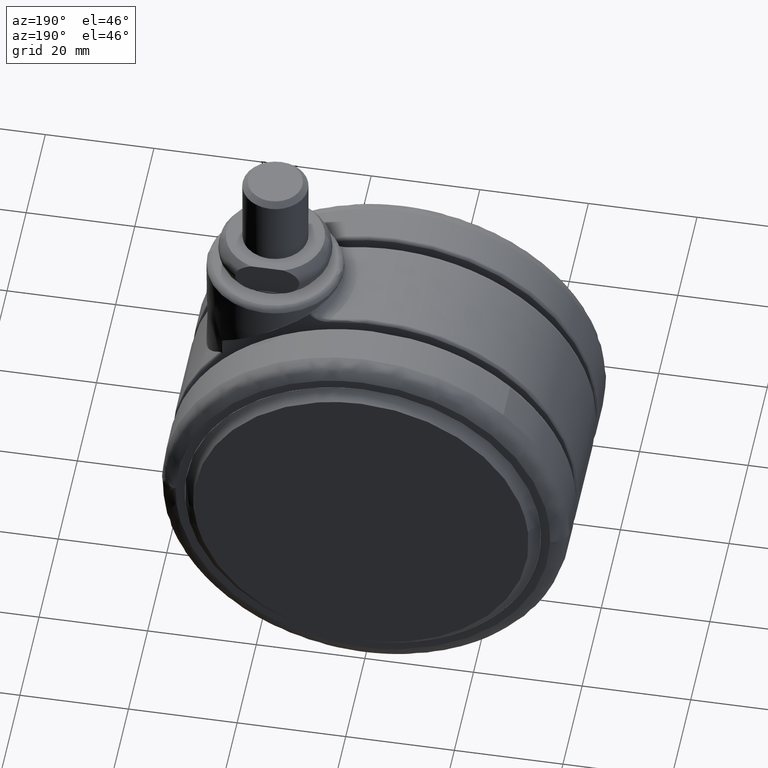
[diagram: clean part render]
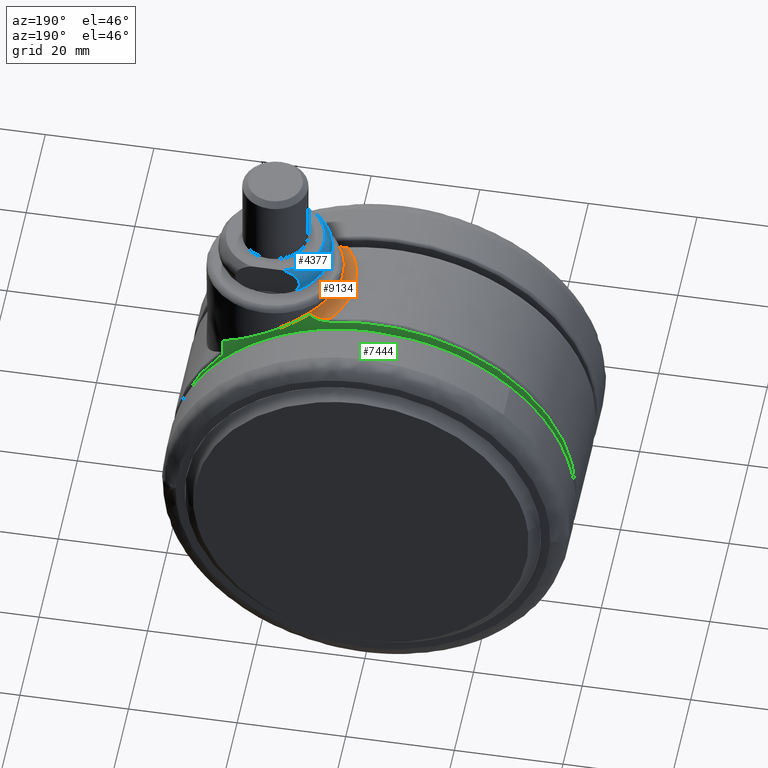
[diagram: same view with three faces highlighted in distinct colors, each labeled with its STEP entity id]
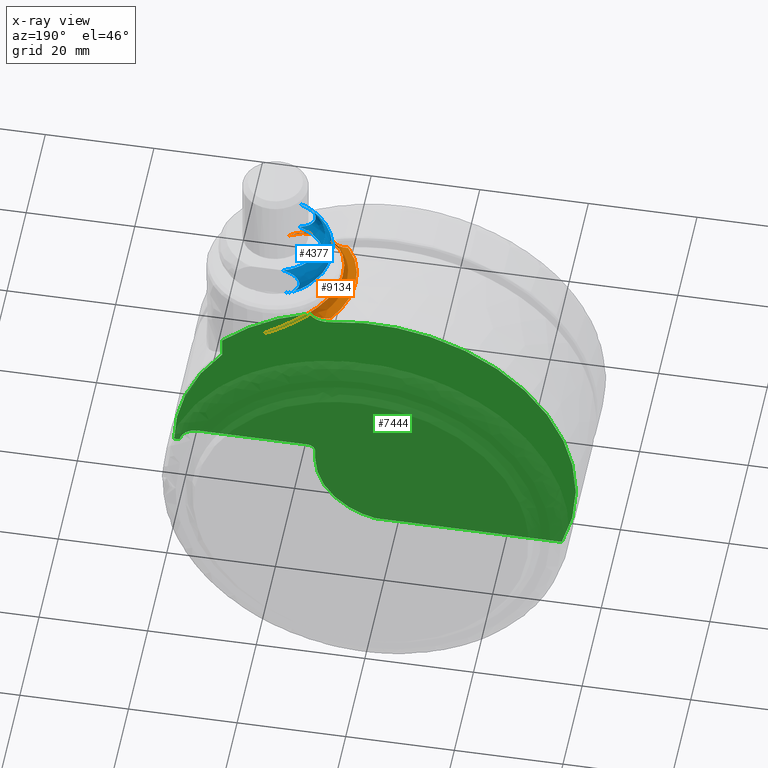
[diagram: x-ray of the same camera — body ghosted, the three highlighted faces saturated]
A machine part, auxiliary view with three faces highlighted in distinct colors.
The next image is the same camera in x-ray (body ghosted, the three faces saturated) — at least one of them is partly hidden behind the body in this view.
Their STEP definitions:

[orange] entity #9134 — the highlighted face is a freeform B-spline surface patch.
#6364=CARTESIAN_POINT('',(-8.312252782363901,9.382036504065061,-2.768758767082135));
#6365=VERTEX_POINT('',#6364);
#6373=CARTESIAN_POINT('',(-6.860676E-013,12.500000000000000,-6.437557339497671));
#6374=VERTEX_POINT('',#6373);
#6375=CARTESIAN_POINT('',(-8.312252782363901,9.382036504065061,-2.768758767082135));
#6376=CARTESIAN_POINT('',(-8.161654395609260,9.515134227301461,-2.815408594075905));
#6377=CARTESIAN_POINT('',(-8.008215997587563,9.644189490277677,-2.863930013929488));
#6378=CARTESIAN_POINT('',(-7.697555377256266,9.892985098354988,-2.964330246267938));
#6379=CARTESIAN_POINT('',(-7.540113349009794,10.012924426286631,-3.016276300472827));
#6380=CARTESIAN_POINT('',(-7.061733551302728,10.359701475610571,-3.177559937021485));
#6381=CARTESIAN_POINT('',(-6.734753670710596,10.573520264707790,-3.292337627694241));
#6382=CARTESIAN_POINT('',(-6.065853801158594,10.967615874003490,-3.537634422327123));
#6383=CARTESIAN_POINT('',(-5.723931125554271,11.147888932861070,-3.668152507453459));
#6384=CARTESIAN_POINT('',(-5.200466259268566,11.393530337235520,-3.876795824061543));
#6385=CARTESIAN_POINT('',(-5.024066699704281,11.471337831061200,-3.948549969349866));
#6386=CARTESIAN_POINT('',(-4.668423540758122,11.618445746679001,-4.096293583861002));
#6387=CARTESIAN_POINT('',(-4.490218436787191,11.687325822568519,-4.171849503386398));
#6388=CARTESIAN_POINT('',(-3.597566221072098,12.009294559656031,-4.558162979349176));
#6389=CARTESIAN_POINT('',(-2.878334892759858,12.195534830083600,-4.894486171931206));
#6390=CARTESIAN_POINT('',(-1.976451546834669,12.349130953191930,-5.351136887600241));
#6391=CARTESIAN_POINT('',(-1.795927150080799,12.375863761803959,-5.444281707251575));
#6392=CARTESIAN_POINT('',(-1.434651826809493,12.421509128324651,-5.634264663513640));
#6393=CARTESIAN_POINT('',(-1.253688713105530,12.440433223621559,-5.731221494565215));
#6394=CARTESIAN_POINT('',(-0.713109421120664,12.485478266703360,-6.026322588112085));
#6395=CARTESIAN_POINT('',(-0.355254315653967,12.499999999999989,-6.228967298440388));
#6396=CARTESIAN_POINT('',(-6.867499E-013,12.500000000000000,-6.437557339497672));
#6397=B_SPLINE_CURVE_WITH_KNOTS('',3,(#6375,#6376,#6377,#6378,#6379,#6380,#6381,#6382,#6383,#6384,#6385,#6386,#6387,#6388,#6389,#6390,#6391,#6392,#6393,#6394,#6395,#6396),.UNSPECIFIED.,.F.,.U.,(4,2,2,2,2,2,2,2,2,2,4),(0.0,0.062500000000000,0.125000000000000,0.250000000000000,0.375000000000001,0.437500000000001,0.500000000000001,0.750000000000000,0.812500000000000,0.875000000000000,1.0),.UNSPECIFIED.);
#6398=EDGE_CURVE('',#6365,#6374,#6397,.T.);
#6654=CARTESIAN_POINT('',(-9.147248698302146,8.519267472137234,-2.132132092541608));
#6655=VERTEX_POINT('',#6654);
#6656=CARTESIAN_POINT('',(-6.860676E-013,12.500000000000000,-6.437557339497671));
#6657=CARTESIAN_POINT('',(-0.178943939280659,12.499999961560169,-6.315678225006437));
#6658=CARTESIAN_POINT('',(-0.358945061279724,12.496159410690851,-6.195630450366724));
#6659=CARTESIAN_POINT('',(-0.721062461354184,12.480501126672690,-5.959215828869976));
#6660=CARTESIAN_POINT('',(-0.903412647653749,12.468660996997279,-5.842704120530937));
#6661=CARTESIAN_POINT('',(-1.451785008688939,12.420828407789820,-5.499873986958029));
#6662=CARTESIAN_POINT('',(-1.818644143869220,12.372634995951451,-5.280532677259436));
#6663=CARTESIAN_POINT('',(-2.554317937749354,12.241936847997099,-4.859892616707022));
#6664=CARTESIAN_POINT('',(-2.923134112366268,12.159437537500320,-4.658594356945830));
#6665=CARTESIAN_POINT('',(-3.661994002670770,11.957693265406290,-4.273732415568319));
#6666=CARTESIAN_POINT('',(-4.032040084294912,11.838457636876800,-4.090169135824960));
#6667=CARTESIAN_POINT('',(-4.494792981934775,11.664329468167301,-3.871643644276031));
#6668=CARTESIAN_POINT('',(-4.587479155864440,11.628194895053239,-3.828427314314508));
#6669=CARTESIAN_POINT('',(-4.772142859594815,11.553637193800521,-3.743409725377181));
#6670=CARTESIAN_POINT('',(-5.047990423036279,11.438414407143149,-3.618039410168894));
#6671=CARTESIAN_POINT('',(-5.320326088459405,11.313011845953040,-3.498996872485748));
#6672=CARTESIAN_POINT('',(-5.860105793785728,11.048515822172689,-3.268995765920103));
#6673=CARTESIAN_POINT('',(-6.213449161804690,10.853955419951090,-3.126434607944299));
#6674=CARTESIAN_POINT('',(-6.905731354208626,10.427184016431671,-2.861132971296271));
#6675=CARTESIAN_POINT('',(-7.244674655284254,10.194979646910159,-2.738393910623876));
#6676=CARTESIAN_POINT('',(-7.658208498235245,9.879908467988688,-2.596385757982279));
#6677=CARTESIAN_POINT('',(-7.740406694630588,9.815650995265582,-2.568555264211039));
#6678=CARTESIAN_POINT('',(-7.903751606350132,9.684606816742923,-2.514013554999204));
#6679=CARTESIAN_POINT('',(-7.985010658691052,9.617722140171757,-2.487266541483897));
#6680=CARTESIAN_POINT('',(-8.225833240415685,9.414337986561460,-2.409095772121381));
#6681=CARTESIAN_POINT('',(-8.382720540582300,9.274907898098121,-2.359643893158564));
#6682=CARTESIAN_POINT('',(-8.746669655979650,8.934702283065271,-2.248001868139887));
#6683=CARTESIAN_POINT('',(-8.950473167179696,8.730555267744276,-2.187989004038225));
#6684=CARTESIAN_POINT('',(-9.147248698302146,8.519267472137234,-2.132132092541608));
#6685=B_SPLINE_CURVE_WITH_KNOTS('',3,(#6656,#6657,#6658,#6659,#6660,#6661,#6662,#6663,#6664,#6665,#6666,#6667,#6668,#6669,#6670,#6671,#6672,#6673,#6674,#6675,#6676,#6677,#6678,#6679,#6680,#6681,#6682,#6683,#6684),.UNSPECIFIED.,.F.,.U.,(4,2,2,2,2,2,2,1,2,2,2,2,2,2,4),(0.0,0.015625000000000,0.031250000000000,0.062500000000000,0.093750000000000,0.125000000000000,0.132812500000000,0.140625000000000,0.156250000000000,0.187500000000001,0.218750000000001,0.226562500000001,0.234375000000001,0.250000000000001,0.271489533160490),.UNSPECIFIED.);
#6686=EDGE_CURVE('',#6374,#6655,#6685,.T.);
#6722=CARTESIAN_POINT('',(-6.825582E-013,-12.500000000000000,-6.437557339497660));
#6723=VERTEX_POINT('',#6722);
#6724=CARTESIAN_POINT('',(-9.147248698302146,8.519267472137234,-2.132132092541608));
#6725=CARTESIAN_POINT('',(-9.236623449541931,8.423301360791808,-2.106762088998567));
#6726=CARTESIAN_POINT('',(-9.324548368570403,8.325862147196453,-2.082249434769856));
#6727=CARTESIAN_POINT('',(-9.687849497093074,7.910273061821409,-1.982671102712610));
#6728=CARTESIAN_POINT('',(-9.949728313251278,7.578520171033716,-1.915130314813174));
#6729=CARTESIAN_POINT('',(-10.319050059761190,7.057791188365066,-1.824529470351695));
#6730=CARTESIAN_POINT('',(-10.438234812028069,6.880358432302900,-1.796117905939677));
#6731=CARTESIAN_POINT('',(-10.610930570809190,6.608299184820243,-1.755990596592371));
#6732=CARTESIAN_POINT('',(-10.667526177717180,6.516545393438567,-1.743020472325513));
#6733=CARTESIAN_POINT('',(-10.777997099211420,6.332160594154846,-1.718026841978976));
#6734=CARTESIAN_POINT('',(-10.831953864167639,6.239406028351965,-1.705984087236086));
#6735=CARTESIAN_POINT('',(-11.095396077121270,5.772853996268089,-1.647915580214314));
#6736=CARTESIAN_POINT('',(-11.285903682705660,5.390741044177037,-1.608291261425387));
#6737=CARTESIAN_POINT('',(-11.626986443558391,4.609219077209020,-1.540083112571566));
#6738=CARTESIAN_POINT('',(-11.777562116977251,4.209809914868377,-1.511503632263780));
#6739=CARTESIAN_POINT('',(-11.973002550806770,3.597642725497052,-1.475550150098326));
#6740=CARTESIAN_POINT('',(-12.033069555560740,3.391407132931330,-1.464724026205430));
#6741=CARTESIAN_POINT('',(-12.115401846920269,3.078733013990288,-1.450101720219241));
#6742=CARTESIAN_POINT('',(-12.141550590961270,2.973954557049907,-1.445497445724276));
#6743=CARTESIAN_POINT('',(-12.191224407755540,2.763277933474065,-1.436812659053452));
#6744=CARTESIAN_POINT('',(-12.214735260234219,2.657424485367560,-1.432734685526670));
#6745=CARTESIAN_POINT('',(-12.325210246327700,2.127585047129097,-1.413693709113045));
#6746=CARTESIAN_POINT('',(-12.391411721289661,1.700158661604561,-1.402669824470365));
#6747=CARTESIAN_POINT('',(-12.446394621764520,1.161440123544750,-1.393577031779180));
#6748=CARTESIAN_POINT('',(-12.456007058697519,1.053360436835743,-1.391993654284673));
#6749=CARTESIAN_POINT('',(-12.472387247645660,0.837399262994616,-1.389301342062518));
#6750=CARTESIAN_POINT('',(-12.492695786230350,0.513817221841645,-1.385974227794619));
#6751=CARTESIAN_POINT('',(-12.500375660773489,0.191300689727165,-1.384724022975792));
#6752=CARTESIAN_POINT('',(-12.499178896531740,-0.452335845520123,-1.384919234722140));
#6753=CARTESIAN_POINT('',(-12.476348541082340,-0.879568705501573,-1.388617865182386));
#6754=CARTESIAN_POINT('',(-12.387042044998410,-1.730349055707841,-1.403398555589294));
#6755=CARTESIAN_POINT('',(-12.320567223919690,-2.153896681121162,-1.414478694381021));
#6756=CARTESIAN_POINT('',(-12.209585845911819,-2.680968293571654,-1.433626689399379));
#6757=CARTESIAN_POINT('',(-12.185991655395039,-2.786264150320999,-1.437723372404902));
#6758=CARTESIAN_POINT('',(-12.135977646751430,-2.996616119258130,-1.446477165275453));
#6759=CARTESIAN_POINT('',(-12.109519968569050,-3.101804406669952,-1.451141079219741));
#6760=CARTESIAN_POINT('',(-12.026321269399331,-3.415308431234423,-1.465935380007093));
#6761=CARTESIAN_POINT('',(-11.965677841588819,-3.621961639344802,-1.476880510329633));
#6762=CARTESIAN_POINT('',(-11.768561194175851,-4.235002658021111,-1.513197324831804));
#6763=CARTESIAN_POINT('',(-11.616938786273970,-4.634490026476883,-1.542028170578534));
#6764=CARTESIAN_POINT('',(-11.274154006092550,-5.415276505972800,-1.610709712254268));
#6765=CARTESIAN_POINT('',(-11.082989843547301,-5.796575167330131,-1.650556721204704));
#6766=CARTESIAN_POINT('',(-10.766364410658030,-6.354614653614760,-1.720492918742786));
#6767=CARTESIAN_POINT('',(-10.655833758956920,-6.538305268802529,-1.745505503780273));
#6768=CARTESIAN_POINT('',(-10.482443008402740,-6.810281933679631,-1.785876568679805));
#6769=CARTESIAN_POINT('',(-10.423442477708960,-6.900240381151238,-1.799795508691112));
#6770=CARTESIAN_POINT('',(-10.303637637643281,-7.077889695321229,-1.828456417956093));
#6771=CARTESIAN_POINT('',(-10.242753048611689,-7.165707703722398,-1.843216988905793));
#6772=CARTESIAN_POINT('',(-9.933504921372514,-7.599821856902878,-1.919250003521364));
#6773=CARTESIAN_POINT('',(-9.670699829744002,-7.931225653997781,-1.987196199185018));
#6774=CARTESIAN_POINT('',(-9.115893766994741,-8.563133685158270,-2.139628121848528));
#6775=CARTESIAN_POINT('',(-8.823888101180085,-8.863634367287011,-2.224111059417127));
#6776=CARTESIAN_POINT('',(-8.364605560741039,-9.291239328567611,-2.365312705107747));
#6777=CARTESIAN_POINT('',(-8.207960098958196,-9.429910515468626,-2.414796693384185));
#6778=CARTESIAN_POINT('',(-7.967694932175212,-9.632071109467569,-2.492946960248652));
#6779=CARTESIAN_POINT('',(-7.886723383789024,-9.698483230995072,-2.519651395439647));
#6780=CARTESIAN_POINT('',(-7.723014993892032,-9.829344963692078,-2.574422646418769));
#6781=CARTESIAN_POINT('',(-7.640290644685639,-9.893777323455549,-2.602487055261547));
#6782=CARTESIAN_POINT('',(-7.225073551119237,-10.208928394350840,-2.745366190523636));
#6783=CARTESIAN_POINT('',(-6.885632729392369,-10.440432568940979,-2.868572706652185));
#6784=CARTESIAN_POINT('',(-6.194198927716958,-10.864919259572559,-3.134090688138273));
#6785=CARTESIAN_POINT('',(-5.842200734751167,-11.057892763574291,-3.276401145153001));
#6786=CARTESIAN_POINT('',(-5.127156260561786,-11.407040397179040,-3.581541669159353));
#6787=CARTESIAN_POINT('',(-4.764106838824087,-11.563209796463100,-3.744370234110122));
#6788=CARTESIAN_POINT('',(-4.212119475623010,-11.770585621906971,-4.005179861083941));
#6789=CARTESIAN_POINT('',(-4.026885761090873,-11.835225639687531,-4.094878884171272));
#6790=CARTESIAN_POINT('',(-3.654062636996611,-11.955592873092799,-4.280017155888452));
#6791=CARTESIAN_POINT('',(-3.467956854949042,-12.010839482644730,-4.374721563462108));
#6792=CARTESIAN_POINT('',(-2.911247109498586,-12.162343089876400,-4.664958258085242));
#6793=CARTESIAN_POINT('',(-2.542003438836952,-12.244475401504880,-4.866736757126091));
#6794=CARTESIAN_POINT('',(-1.440754235917887,-12.439053652003240,-5.497004863596332));
#6795=CARTESIAN_POINT('',(-0.715260130783479,-12.500000033342570,-5.950392163759975));
#6796=CARTESIAN_POINT('',(-6.825582E-013,-12.500000000000000,-6.437557339497660));
#6797=B_SPLINE_CURVE_WITH_KNOTS('',3,(#6724,#6725,#6726,#6727,#6728,#6729,#6730,#6731,#6732,#6733,#6734,#6735,#6736,#6737,#6738,#6739,#6740,#6741,#6742,#6743,#6744,#6745,#6746,#6747,#6748,#6749,#6750,#6751,#6752,#6753,#6754,#6755,#6756,#6757,#6758,#6759,#6760,#6761,#6762,#6763,#6764,#6765,#6766,#6767,#6768,#6769,#6770,#6771,#6772,#6773,#6774,#6775,#6776,#6777,#6778,#6779,#6780,#6781,#6782,#6783,#6784,#6785,#6786,#6787,#6788,#6789,#6790,#6791,#6792,#6793,#6794,#6795,#6796),.UNSPECIFIED.,.F.,.U.,(4,2,2,2,2,2,2,2,2,2,2,2,2,1,2,2,2,2,2,2,2,2,2,2,2,2,2,2,2,2,2,2,2,2,2,2,4),(0.271489533160490,0.281250000000001,0.312500000000001,0.328125000000000,0.335937500000000,0.343750000000000,0.375000000000000,0.406250000000000,0.421875000000000,0.429687500000000,0.437500000000000,0.468750000000000,0.476562500000000,0.484375000000000,0.499999999999999,0.531249999999999,0.562499999999999,0.570312499999999,0.578124999999999,0.593749999999999,0.624999999999999,0.656249999999999,0.671874999999999,0.679687499999999,0.687499999999999,0.718749999999999,0.749999999999999,0.765624999999999,0.773437499999999,0.781249999999999,0.812500000000000,0.843750000000000,0.875000000000000,0.890625000000000,0.906250000000000,0.937500000000000,1.0),.UNSPECIFIED.);
#6798=EDGE_CURVE('',#6655,#6723,#6797,.T.);
#7034=CARTESIAN_POINT('',(-11.805838924915539,8.999999999988731,-3.906206478754365));
#7035=VERTEX_POINT('',#7034);
#7500=CARTESIAN_POINT('',(-11.805838924906540,-9.000000000000659,-3.906206478756380));
#7501=VERTEX_POINT('',#7500);
#7524=CARTESIAN_POINT('',(-11.805838924906540,-9.000000000000659,-3.906206478756380));
#7525=CARTESIAN_POINT('',(-12.046837819324020,-8.679333460865726,-3.852241487162057));
#7526=CARTESIAN_POINT('',(-12.274629916372310,-8.348406739262936,-3.803725052018232));
#7527=CARTESIAN_POINT('',(-12.596396211965491,-7.836730204240366,-3.737945712371875));
#7528=CARTESIAN_POINT('',(-12.700242990331390,-7.663723634669585,-3.717206441425792));
#7529=CARTESIAN_POINT('',(-12.899969609063190,-7.314949680800781,-3.678132545718596));
#7530=CARTESIAN_POINT('',(-12.996027153543061,-7.138905429500713,-3.659761327929779));
#7531=CARTESIAN_POINT('',(-13.457584118106761,-6.250559327186276,-3.573208490142068));
#7532=CARTESIAN_POINT('',(-13.767262796532190,-5.514052647632648,-3.520714461542935));
#7533=CARTESIAN_POINT('',(-14.143547321501590,-4.371534329087205,-3.459912189358102));
#7534=CARTESIAN_POINT('',(-14.254197450876520,-3.984368706092516,-3.442678350801160));
#7535=CARTESIAN_POINT('',(-14.397467641647291,-3.393947969731136,-3.420841907345974));
#7536=CARTESIAN_POINT('',(-14.441196921566039,-3.196480827272744,-3.414270720347218));
#7537=CARTESIAN_POINT('',(-14.520520065870750,-2.801217501960681,-3.402467635704158));
#7538=CARTESIAN_POINT('',(-14.556152165901990,-2.603264278831990,-3.397229963784580));
#7539=CARTESIAN_POINT('',(-14.714446178909601,-1.611914748185788,-3.374142455398909));
#7540=CARTESIAN_POINT('',(-14.777915213004491,-0.813802312984008,-3.365382312462376));
#7541=CARTESIAN_POINT('',(-14.778758301933371,0.390867584008307,-3.365263765432439));
#7542=CARTESIAN_POINT('',(-14.763233457465709,0.793681064458942,-3.367436019016509));
#7543=CARTESIAN_POINT('',(-14.699632835871160,1.601897842648785,-3.376461112277244));
#7544=CARTESIAN_POINT('',(-14.651827623926209,2.003759339404850,-3.383276020934334));
#7545=CARTESIAN_POINT('',(-14.556246461530810,2.602831266752149,-3.397215952330652));
#7546=CARTESIAN_POINT('',(-14.520400413534921,2.801920909281932,-3.402485097922631));
#7547=CARTESIAN_POINT('',(-14.440691787956879,3.198889853889313,-3.414346227397438));
#7548=CARTESIAN_POINT('',(-14.396794881122650,3.396849500766859,-3.420943738079435));
#7549=CARTESIAN_POINT('',(-14.253918691050460,3.985257139860305,-3.442722265302993));
#7550=CARTESIAN_POINT('',(-14.143551170761519,4.371460346495812,-3.459912361665989));
#7551=CARTESIAN_POINT('',(-13.767941109202329,5.512117496307304,-3.520603269368275));
#7552=CARTESIAN_POINT('',(-13.458488544159250,6.248747220371286,-3.573041787671060));
#7553=CARTESIAN_POINT('',(-12.996149729292890,7.138687323329410,-3.659737618749455));
#7554=CARTESIAN_POINT('',(-12.899882036968830,7.315122750676706,-3.678148654392365));
#7555=CARTESIAN_POINT('',(-12.699604568017360,7.664818264255987,-3.717332367762237));
#7556=CARTESIAN_POINT('',(-12.595655250218060,7.837937945063278,-3.738095350183076));
#7557=CARTESIAN_POINT('',(-12.274290881585189,8.348886715745355,-3.803798054279779));
#7558=CARTESIAN_POINT('',(-12.046712899385790,8.679499675919141,-3.852269459503786));
#7559=CARTESIAN_POINT('',(-11.805838924915539,8.999999999988738,-3.906206478754307));
#7560=B_SPLINE_CURVE_WITH_KNOTS('',3,(#7524,#7525,#7526,#7527,#7528,#7529,#7530,#7531,#7532,#7533,#7534,#7535,#7536,#7537,#7538,#7539,#7540,#7541,#7542,#7543,#7544,#7545,#7546,#7547,#7548,#7549,#7550,#7551,#7552,#7553,#7554,#7555,#7556,#7557,#7558,#7559),.UNSPECIFIED.,.F.,.U.,(4,2,2,2,2,2,2,2,2,2,2,2,2,2,2,2,2,4),(0.0,0.062500000000000,0.093750000000000,0.124999999999999,0.249999999999999,0.312499999999999,0.343749999999999,0.374999999999999,0.499999999999999,0.562499999999999,0.624999999999999,0.656249999999999,0.687499999999999,0.749999999999999,0.875000000000000,0.906250000000000,0.937500000000000,1.0),.UNSPECIFIED.);
#7561=EDGE_CURVE('',#7501,#7035,#7560,.T.);
#8435=CARTESIAN_POINT('',(-8.312252782363901,9.382036504065061,-2.768758767082135));
#8436=CARTESIAN_POINT('',(-8.336159984840277,9.381830480537555,-2.849775725415410));
#8437=CARTESIAN_POINT('',(-8.369012170120660,9.380392201549793,-2.926734197665577));
#8438=CARTESIAN_POINT('',(-8.430571632032144,9.376519790408063,-3.036599228078113));
#8439=CARTESIAN_POINT('',(-8.453224488570600,9.374934938358463,-3.072362522417451));
#8440=CARTESIAN_POINT('',(-8.501352397157646,9.371300076919754,-3.140620212939762));
#8441=CARTESIAN_POINT('',(-8.526930796882299,9.369244472781825,-3.173325235903061));
#8442=CARTESIAN_POINT('',(-8.607701542493558,9.362439735187841,-3.267645977410044));
#8443=CARTESIAN_POINT('',(-8.666904293148471,9.357056217535696,-3.325490972299205));
#8444=CARTESIAN_POINT('',(-8.762324076974311,9.347929093192859,-3.406037756385722));
#8445=CARTESIAN_POINT('',(-8.795364356556670,9.344697876954111,-3.431928994374621));
#8446=CARTESIAN_POINT('',(-8.862709068063909,9.337988760841023,-3.481223312218879));
#8447=CARTESIAN_POINT('',(-8.897031409005409,9.334509758546590,-3.504658566784416));
#8448=CARTESIAN_POINT('',(-9.071507678791360,9.316568607396908,-3.616494273138378));
#8449=CARTESIAN_POINT('',(-9.220038524811692,9.300505878641737,-3.689276500610575));
#8450=CARTESIAN_POINT('',(-9.452273518179601,9.274706792041734,-3.780871021511340));
#8451=CARTESIAN_POINT('',(-9.530574812410256,9.265896244503152,-3.808105021399546));
#8452=CARTESIAN_POINT('',(-9.688016386493199,9.248017700922453,-3.856746650563393));
#8453=CARTESIAN_POINT('',(-9.767277356786684,9.238936064080933,-3.878194902984325));
#8454=CARTESIAN_POINT('',(-10.006502268570660,9.211351748417220,-3.934895723061639));
#8455=CARTESIAN_POINT('',(-10.167893046330059,9.192514086583580,-3.962585249489738));
#8456=CARTESIAN_POINT('',(-10.412531139097659,9.163816171798652,-3.990687078503529));
#8457=CARTESIAN_POINT('',(-10.494506937352741,9.154175319814016,-3.997791884447802));
#8458=CARTESIAN_POINT('',(-10.659310717747990,9.134769596285311,-4.007529863184759));
#8459=CARTESIAN_POINT('',(-10.742258549195670,9.124990565401861,-4.010152652056565));
#8460=CARTESIAN_POINT('',(-10.989938226418470,9.095787183152295,-4.011254546423010));
#8461=CARTESIAN_POINT('',(-11.154259811442120,9.076409927699940,-4.003088221127547));
#8462=CARTESIAN_POINT('',(-11.481295832713551,9.037958746375507,-3.968680275328256));
#8463=CARTESIAN_POINT('',(-11.644010673199100,9.018884583054946,-3.942443409487735));
#8464=CARTESIAN_POINT('',(-11.805838924928100,8.999999999999670,-3.906206478751545));
#8465=B_SPLINE_CURVE_WITH_KNOTS('',3,(#8435,#8436,#8437,#8438,#8439,#8440,#8441,#8442,#8443,#8444,#8445,#8446,#8447,#8448,#8449,#8450,#8451,#8452,#8453,#8454,#8455,#8456,#8457,#8458,#8459,#8460,#8461,#8462,#8463,#8464),.UNSPECIFIED.,.F.,.U.,(4,2,2,2,2,2,2,2,2,2,2,2,2,2,4),(0.0,0.062500000000002,0.093750000000003,0.125000000000004,0.187500000000004,0.218750000000004,0.250000000000005,0.375000000000005,0.437500000000006,0.500000000000006,0.625000000000005,0.687500000000004,0.750000000000003,0.875000000000002,1.0),.UNSPECIFIED.);
#8466=EDGE_CURVE('',#6365,#7035,#8465,.T.);
#8635=CARTESIAN_POINT('',(-8.312252782364320,-9.382036504064638,-2.768758767082040));
#8636=VERTEX_POINT('',#8635);
#8646=CARTESIAN_POINT('',(-11.805838924906540,-9.000000000000659,-3.906206478756380));
#8647=CARTESIAN_POINT('',(-11.644010673177700,-9.018884583055149,-3.942443409491534));
#8648=CARTESIAN_POINT('',(-11.481295832703880,-9.037958746376274,-3.968680275329596));
#8649=CARTESIAN_POINT('',(-11.154259811433221,-9.076409927700624,-4.003088221128087));
#8650=CARTESIAN_POINT('',(-10.989938226410001,-9.095787183152927,-4.011254546423211));
#8651=CARTESIAN_POINT('',(-10.742258549187900,-9.124990565402404,-4.010152652056314));
#8652=CARTESIAN_POINT('',(-10.659310717740439,-9.134769596285828,-4.007529863184360));
#8653=CARTESIAN_POINT('',(-10.494506937345619,-9.154175319814479,-3.997791884447144));
#8654=CARTESIAN_POINT('',(-10.412531139090760,-9.163816171799093,-3.990687078502756));
#8655=CARTESIAN_POINT('',(-10.167893046323830,-9.192514086583941,-3.962585249488640));
#8656=CARTESIAN_POINT('',(-10.006502268564910,-9.211351748417522,-3.934895723060366));
#8657=CARTESIAN_POINT('',(-9.767277356781708,-9.238936064081132,-3.878194902982854));
#8658=CARTESIAN_POINT('',(-9.688016386488492,-9.248017700922622,-3.856746650561867));
#8659=CARTESIAN_POINT('',(-9.530574812406101,-9.265896244503246,-3.808105021397938));
#8660=CARTESIAN_POINT('',(-9.452273518175826,-9.274706792041783,-3.780871021509728));
#8661=CARTESIAN_POINT('',(-9.220038524808510,-9.300505878641717,-3.689276500608815));
#8662=CARTESIAN_POINT('',(-9.071507678788636,-9.316568607396825,-3.616494273136568));
#8663=CARTESIAN_POINT('',(-8.897031409003358,-9.334509758546426,-3.504658566782674));
#8664=CARTESIAN_POINT('',(-8.862709068061994,-9.337988760840846,-3.481223312217153));
#8665=CARTESIAN_POINT('',(-8.795364356555041,-9.344697876953896,-3.431928994372955));
#8666=CARTESIAN_POINT('',(-8.762324076972773,-9.347929093192629,-3.406037756384063));
#8667=CARTESIAN_POINT('',(-8.666904293147235,-9.357056217535432,-3.325490972297566));
#8668=CARTESIAN_POINT('',(-8.607701542492544,-9.362439735187556,-3.267645977408452));
#8669=CARTESIAN_POINT('',(-8.526930796881647,-9.369244472781499,-3.173325235901634));
#8670=CARTESIAN_POINT('',(-8.501352397157113,-9.371300076919422,-3.140620212938408));
#8671=CARTESIAN_POINT('',(-8.453224488570305,-9.374934938358098,-3.072362522416275));
#8672=CARTESIAN_POINT('',(-8.430571632031956,-9.376519790407686,-3.036599228077021));
#8673=CARTESIAN_POINT('',(-8.369012170120717,-9.380392201549395,-2.926734197664692));
#8674=CARTESIAN_POINT('',(-8.336159984843905,-9.381830480537007,-2.849775725412714));
#8675=CARTESIAN_POINT('',(-8.312252782367750,-9.382036504064500,-2.768758767079906));
#8676=B_SPLINE_CURVE_WITH_KNOTS('',3,(#8646,#8647,#8648,#8649,#8650,#8651,#8652,#8653,#8654,#8655,#8656,#8657,#8658,#8659,#8660,#8661,#8662,#8663,#8664,#8665,#8666,#8667,#8668,#8669,#8670,#8671,#8672,#8673,#8674,#8675),.UNSPECIFIED.,.F.,.U.,(4,2,2,2,2,2,2,2,2,2,2,2,2,2,4),(0.0,0.124999999999999,0.249999999999998,0.312499999999998,0.374999999999998,0.500000000000000,0.562500000000001,0.625000000000002,0.750000000000005,0.781250000000005,0.812500000000005,0.875000000000003,0.906250000000002,0.937500000000002,1.0),.UNSPECIFIED.);
#8677=EDGE_CURVE('',#7501,#8636,#8676,.T.);
#8814=CARTESIAN_POINT('',(-0.623709935477672,-14.523136452863278,-8.393268874985100));
#8815=CARTESIAN_POINT('',(-0.675545754815880,-14.524087461538935,-8.362326682887193));
#8816=CARTESIAN_POINT('',(-0.727380155263334,-14.525038444182835,-8.331385337763260));
#8817=CARTESIAN_POINT('',(-1.598662871241798,-14.541023479867123,-7.811293294971464));
#8818=CARTESIAN_POINT('',(-2.426757218755824,-14.479734610581087,-7.359369930963985));
#8819=CARTESIAN_POINT('',(-3.678822628707088,-14.262246890844619,-6.734829573811961));
#8820=CARTESIAN_POINT('',(-4.097822781329939,-14.168726050180172,-6.535550698137755));
#8821=CARTESIAN_POINT('',(-4.938489771077459,-13.936295969967057,-6.154491100078224));
#8822=CARTESIAN_POINT('',(-5.362477641432626,-13.796341229034645,-5.971819636206996));
#8823=CARTESIAN_POINT('',(-6.610638153118805,-13.312608096940261,-5.460251558823062));
#8824=CARTESIAN_POINT('',(-7.416342199102109,-12.905101255976282,-5.164924956154906));
#8825=CARTESIAN_POINT('',(-8.577916142490734,-12.159811416412888,-4.779519833160914));
#8826=CARTESIAN_POINT('',(-8.957231735427405,-11.888932269598318,-4.660679251481747));
#8827=CARTESIAN_POINT('',(-9.698159181383886,-11.299534153284014,-4.440718544090808));
#8828=CARTESIAN_POINT('',(-10.057121733932757,-10.982735844821004,-4.340440011294639));
#8829=CARTESIAN_POINT('',(-11.079225826664775,-9.983585032809895,-4.069694448739255));
#8830=CARTESIAN_POINT('',(-11.696117003110734,-9.246719731974645,-3.926651870383318));
#8831=CARTESIAN_POINT('',(-12.518195088287777,-8.032773307632910,-3.752868657147343));
#8832=CARTESIAN_POINT('',(-12.775499127595355,-7.608208349581205,-3.701715660322883));
#8833=CARTESIAN_POINT('',(-13.242543145524628,-6.741945282449229,-3.613092103660092));
#8834=CARTESIAN_POINT('',(-13.453920685431855,-6.298145961389425,-3.575258589791995));
#8835=CARTESIAN_POINT('',(-13.832829738550606,-5.389614673728152,-3.510085990145137));
#8836=CARTESIAN_POINT('',(-14.000362377884080,-4.924883099211174,-3.482750711481991));
#8837=CARTESIAN_POINT('',(-14.290696550564334,-3.974217969840008,-3.436860826357500));
#8838=CARTESIAN_POINT('',(-14.413951327368942,-3.485399267655648,-3.418242550192547));
#8839=CARTESIAN_POINT('',(-14.708104603991659,-2.014565626372543,-3.374725432482900));
#8840=CARTESIAN_POINT('',(-14.806419223759526,-1.025378739821126,-3.361372865431658));
#8841=CARTESIAN_POINT('',(-14.809125620936561,0.471172253582269,-3.360994524091903));
#8842=CARTESIAN_POINT('',(-14.785536964872991,0.973797326280805,-3.364266839441983));
#8843=CARTESIAN_POINT('',(-14.688474820539522,1.975860807271689,-3.378025501448215));
#8844=CARTESIAN_POINT('',(-14.615419413875358,2.472797610180489,-3.388453399187433));
#8845=CARTESIAN_POINT('',(-14.420318196826974,3.458475806809505,-3.417285338547081));
#8846=CARTESIAN_POINT('',(-14.298553823852844,3.944848608410131,-3.435656429973294));
#8847=CARTESIAN_POINT('',(-14.010770880961729,4.894220014262978,-3.481070344489821));
#8848=CARTESIAN_POINT('',(-13.844436502930293,5.358883613021676,-3.508157936949720));
#8849=CARTESIAN_POINT('',(-13.467498524207430,6.268303402233427,-3.572859290440321));
#8850=CARTESIAN_POINT('',(-13.256895205151654,6.713059850354329,-3.610468621060476));
#8851=CARTESIAN_POINT('',(-12.790689834122682,7.582159591223739,-3.698739416553969));
#8852=CARTESIAN_POINT('',(-12.534313897560590,8.007046547971896,-3.749601089647634));
#8853=CARTESIAN_POINT('',(-11.716247668680355,9.220663220593934,-3.922129667742100));
#8854=CARTESIAN_POINT('',(-11.100925231550720,9.959508850371689,-4.064381136741025));
#8855=CARTESIAN_POINT('',(-10.078170909709723,10.963525510204756,-4.334656984042010));
#8856=CARTESIAN_POINT('',(-9.718269721228564,11.282302002088576,-4.434996307801763));
#8857=CARTESIAN_POINT('',(-8.980283395590059,11.871759370331835,-4.653601936506571));
#8858=CARTESIAN_POINT('',(-8.601515553308474,12.143535375511352,-4.771977526741401));
#8859=CARTESIAN_POINT('',(-7.826195961850463,12.643199879662806,-5.028666777560153));
#8860=CARTESIAN_POINT('',(-7.429637588786676,12.871082003092774,-5.166978897222816));
#8861=CARTESIAN_POINT('',(-6.619970556262316,13.283888522078572,-5.465571757437864));
#8862=CARTESIAN_POINT('',(-6.204719750883830,13.469594508275312,-5.626742470705332));
#8863=CARTESIAN_POINT('',(-4.951728326905599,13.956179987800187,-6.139927699678887));
#8864=CARTESIAN_POINT('',(-4.113064411490678,14.185913823511729,-6.518642953045434));
#8865=CARTESIAN_POINT('',(-2.436460030156118,14.478929718163453,-7.354118386078671));
#8866=CARTESIAN_POINT('',(-1.592830939443370,14.540826666943458,-7.814823908293938));
#8867=CARTESIAN_POINT('',(-0.729297279418032,14.525079236537033,-8.330237878775980));
#8868=CARTESIAN_POINT('',(-0.677937804790024,14.524142643338795,-8.360892608250119));
#8869=CARTESIAN_POINT('',(-0.626576936077998,14.523206024718021,-8.391548169805761));
#8870=CARTESIAN_POINT('',(-0.624017583768662,-14.509184447371892,-8.393084110661290));
#8871=CARTESIAN_POINT('',(-0.675808388122561,-14.510121618946130,-8.362169163666465));
#8872=CARTESIAN_POINT('',(-0.727598481598250,-14.511058777656782,-8.331254641008780));
#8873=CARTESIAN_POINT('',(-1.598242242757429,-14.526813361784564,-7.811550302306244));
#8874=CARTESIAN_POINT('',(-2.425640580712076,-14.465379801846227,-7.359986896329811));
#8875=CARTESIAN_POINT('',(-3.676532025153909,-14.247842090746245,-6.735943134094854));
#8876=CARTESIAN_POINT('',(-4.095123188673337,-14.154332051455826,-6.536821561761800));
#8877=CARTESIAN_POINT('',(-4.934936987600914,-13.921986575902256,-6.156056226181983));
#8878=CARTESIAN_POINT('',(-5.358477578476137,-13.782105574056086,-5.973522823790859));
#8879=CARTESIAN_POINT('',(-6.605289771309477,-13.298691309013174,-5.462321831630264));
#8880=CARTESIAN_POINT('',(-7.410063525071282,-12.891525153001886,-5.167185105542480));
#8881=CARTESIAN_POINT('',(-8.570271422288231,-12.146943434177944,-4.781973269511702));
#8882=CARTESIAN_POINT('',(-8.949136419563830,-11.876332334125571,-4.663182355234589));
#8883=CARTESIAN_POINT('',(-9.689181697431785,-11.287534580634485,-4.443292917369378));
#8884=CARTESIAN_POINT('',(-10.047714923273078,-10.971067285459425,-4.343035759474694));
#8885=CARTESIAN_POINT('',(-11.068601253732265,-9.972974609321398,-4.072317990999569));
#8886=CARTESIAN_POINT('',(-11.684761600732255,-9.236910348825848,-3.929246422672025));
#8887=CARTESIAN_POINT('',(-12.505888161548700,-8.024276649401907,-3.755385215707493));
#8888=CARTESIAN_POINT('',(-12.762897467598364,-7.600171237884504,-3.704200223365908));
#8889=CARTESIAN_POINT('',(-13.229412340200842,-6.734841999102837,-3.615508804234907));
#8890=CARTESIAN_POINT('',(-13.440553598901388,-6.291519426284623,-3.577639291599035));
#8891=CARTESIAN_POINT('',(-13.819043321764498,-5.383959183948179,-3.512396085986755));
#8892=CARTESIAN_POINT('',(-13.986393061615356,-4.919721882315423,-3.485026200547639));
#8893=CARTESIAN_POINT('',(-14.276412831926120,-3.970062967729827,-3.439072967434973));
#8894=CARTESIAN_POINT('',(-14.399535796296844,-3.481759015400824,-3.420425861911904));
#8895=CARTESIAN_POINT('',(-14.693375850246269,-2.012470083496217,-3.376837784588582));
#8896=CARTESIAN_POINT('',(-14.791588540799477,-1.024311355188303,-3.363458954973880));
#8897=CARTESIAN_POINT('',(-14.794292102220638,0.470681766182394,-3.363079912318864));
#8898=CARTESIAN_POINT('',(-14.770728090881452,0.972783879821204,-3.366358390196744));
#8899=CARTESIAN_POINT('',(-14.673768033449456,1.973802158724836,-3.380141783736447));
#8900=CARTESIAN_POINT('',(-14.600789554625603,2.470219783753750,-3.390588120882664));
#8901=CARTESIAN_POINT('',(-14.405895862626473,3.454863880343410,-3.419467150258844));
#8902=CARTESIAN_POINT('',(-14.284261666949273,3.940724582782230,-3.437866772108838));
#8903=CARTESIAN_POINT('',(-13.996790232581136,4.889091344794325,-3.483343642908364));
#8904=CARTESIAN_POINT('',(-13.830637353239837,5.353260861248761,-3.510465713084176));
#8905=CARTESIAN_POINT('',(-13.454116310430022,6.261708862798726,-3.575237609149203));
#8906=CARTESIAN_POINT('',(-13.243748274293404,6.705987637828351,-3.612883003977799));
#8907=CARTESIAN_POINT('',(-12.778070836221008,7.574150632277210,-3.701221989510902));
#8908=CARTESIAN_POINT('',(-12.521988438166145,7.998577735523677,-3.752115791641056));
#8909=CARTESIAN_POINT('',(-11.704868667641101,9.210882071879023,-3.924722926098617));
#8910=CARTESIAN_POINT('',(-11.090274866305313,9.948924348955590,-4.067004305252127));
#8911=CARTESIAN_POINT('',(-10.068738967231605,10.951877113152733,-4.337253765022010));
#8912=CARTESIAN_POINT('',(-9.709268218054540,11.270320305034723,-4.437572098674371));
#8913=CARTESIAN_POINT('',(-8.972160680859883,11.859176634241027,-4.656107748160926));
#8914=CARTESIAN_POINT('',(-8.593842928577006,12.130683278878756,-4.774434334649416));
#8915=CARTESIAN_POINT('',(-7.819433540141538,12.629873051333893,-5.030995931491895));
#8916=CARTESIAN_POINT('',(-7.423336384742068,12.857549694384439,-5.169229106081739));
#8917=CARTESIAN_POINT('',(-6.614591702537307,13.270009933829556,-5.467633888988384));
#8918=CARTESIAN_POINT('',(-6.199805441419331,13.455574885875468,-5.628694372430465));
#8919=CARTESIAN_POINT('',(-4.948180760818967,13.941837671699478,-6.141508079058359));
#8920=CARTESIAN_POINT('',(-4.110376344871296,14.171495640307379,-6.519923945461439));
#8921=CARTESIAN_POINT('',(-2.435335224542257,14.464573380214700,-7.354739486420040));
#8922=CARTESIAN_POINT('',(-1.592415064059116,14.526618267773074,-7.815077965854393));
#8923=CARTESIAN_POINT('',(-0.729514059045692,14.511099036870565,-8.330108124052631));
#8924=CARTESIAN_POINT('',(-0.678198397946202,14.510176127302845,-8.360736333894277));
#8925=CARTESIAN_POINT('',(-0.626882038395478,14.509253205173525,-8.391364960612771));
#8926=CARTESIAN_POINT('',(-0.667783958242166,-12.524357244116008,-8.366799340610680));
#8927=CARTESIAN_POINT('',(-0.713207442540309,-12.521381829164371,-8.339738383723592));
#8928=CARTESIAN_POINT('',(-0.758718661838509,-12.518400667228878,-8.312625158872239));
#8929=CARTESIAN_POINT('',(-1.537282355290696,-12.467401716133596,-7.848797276271378));
#8930=CARTESIAN_POINT('',(-2.261468199433591,-12.354881108025801,-7.450695495988359));
#8931=CARTESIAN_POINT('',(-3.333256286801321,-12.089101708663337,-6.902824141408604));
#8932=CARTESIAN_POINT('',(-3.688127706783314,-11.984266714816252,-6.728419265148482));
#8933=CARTESIAN_POINT('',(-4.393372240677570,-11.740749406090373,-6.394634548751844));
#8934=CARTESIAN_POINT('',(-4.745640487160078,-11.601105553572584,-6.234462848038958));
#8935=CARTESIAN_POINT('',(-5.774864735694746,-11.137879025597581,-5.783766042410762));
#8936=CARTESIAN_POINT('',(-6.428896176828650,-10.769989795464113,-5.520378275047620));
#8937=CARTESIAN_POINT('',(-7.368044645180935,-10.123294117996517,-5.167806471866642));
#8938=CARTESIAN_POINT('',(-7.674067895697110,-9.891754907525492,-5.057438596869552));
#8939=CARTESIAN_POINT('',(-8.272201647940376,-9.393556809410391,-4.849624534907372));
#8940=CARTESIAN_POINT('',(-8.562190099762800,-9.128366798190120,-4.752956666418054));
#8941=CARTESIAN_POINT('',(-9.390245821995888,-8.296854354130634,-4.486756898892644));
#8942=CARTESIAN_POINT('',(-9.893559850702410,-7.689577750895432,-4.338511232951197));
#8943=CARTESIAN_POINT('',(-10.571027453893610,-6.688455732767656,-4.151031535847252));
#8944=CARTESIAN_POINT('',(-10.784277562590626,-6.338243112093459,-4.094308026095181));
#8945=CARTESIAN_POINT('',(-11.173278741349234,-5.622549250064634,-3.993936412268139));
#8946=CARTESIAN_POINT('',(-11.350365095359352,-5.255339443248908,-3.949905569377056));
#8947=CARTESIAN_POINT('',(-11.669168477222250,-4.502033488521001,-3.872635952184519));
#8948=CARTESIAN_POINT('',(-11.810883245035750,-4.115940379612880,-3.839399221002241));
#8949=CARTESIAN_POINT('',(-12.057301028248800,-3.324543795828493,-3.782750163882127));
#8950=CARTESIAN_POINT('',(-12.162390150075474,-2.916828424755521,-3.759253913606312));
#8951=CARTESIAN_POINT('',(-12.413726486010066,-1.688131509552753,-3.703778014428053));
#8952=CARTESIAN_POINT('',(-12.498428214411890,-0.859269455258489,-3.686015764285648));
#8953=CARTESIAN_POINT('',(-12.500753637011124,0.394843272305278,-3.685519800319746));
#8954=CARTESIAN_POINT('',(-12.480470466690335,0.816049918674894,-3.689825931699762));
#8955=CARTESIAN_POINT('',(-12.397184715794335,1.655127188455875,-3.707738350092589));
#8956=CARTESIAN_POINT('',(-12.334542219106577,2.070899997329248,-3.721268496633368));
#8957=CARTESIAN_POINT('',(-12.167821434870531,2.894360972400930,-3.758043203925728));
#8958=CARTESIAN_POINT('',(-12.063990427402663,3.300061626549562,-3.781241051177338));
#8959=CARTESIAN_POINT('',(-11.819697990837151,4.090445516166641,-3.837345847631005));
#8960=CARTESIAN_POINT('',(-11.678968739340322,4.476518541256244,-3.870311760689631));
#8961=CARTESIAN_POINT('',(-11.361756693984438,5.230627740367881,-3.947096712902542));
#8962=CARTESIAN_POINT('',(-11.185277261772455,5.598661172353485,-3.990913230348869));
#8963=CARTESIAN_POINT('',(-10.796887967751335,6.316743952065520,-4.090985982683967));
#8964=CARTESIAN_POINT('',(-10.584362199084707,6.667236429014110,-4.147440007151441));
#8965=CARTESIAN_POINT('',(-9.910051295903664,7.668095005729814,-4.333759284529309));
#8966=CARTESIAN_POINT('',(-9.407892558013289,8.276946204148169,-4.481372469447059));
#8967=CARTESIAN_POINT('',(-8.579211048458648,9.112318331046263,-4.747347208404833));
#8968=CARTESIAN_POINT('',(-8.288443606805950,9.379092836742540,-4.844142756316894));
#8969=CARTESIAN_POINT('',(-7.692670156177162,9.877143270079975,-5.050823354321436));
#8970=CARTESIAN_POINT('',(-7.387097877544278,10.109314510096519,-5.160839363969988));
#8971=CARTESIAN_POINT('',(-6.760291144105801,10.542601731177406,-5.395792121701694));
#8972=CARTESIAN_POINT('',(-6.439047674994539,10.743715801029499,-5.520726241983317));
#8973=CARTESIAN_POINT('',(-5.779842059029224,11.116178060804389,-5.787658129219405));
#8974=CARTESIAN_POINT('',(-5.440104490623142,11.288287590700381,-5.930438006436596));
#8975=CARTESIAN_POINT('',(-4.407024028063685,11.754016294543320,-6.382584050760349));
#8976=CARTESIAN_POINT('',(-3.704829474813354,11.996233677569723,-6.713186441684968));
#8977=CARTESIAN_POINT('',(-2.269934329276210,12.353496479279228,-7.446071314112269));
#8978=CARTESIAN_POINT('',(-1.532150049931479,12.467661644817419,-7.851893759839280));
#8979=CARTESIAN_POINT('',(-0.760414868347067,12.518294230666795,-8.311612262585825));
#8980=CARTESIAN_POINT('',(-0.715308554659168,12.521253599832088,-8.338481851387577));
#8981=CARTESIAN_POINT('',(-0.670288469654042,12.524207311640701,-8.365300074226125));
#8982=CARTESIAN_POINT('',(0.359875082989512,-12.495617808247038,-6.668534004208068));
#8983=CARTESIAN_POINT('',(0.312869669253955,-12.496440525501988,-6.635971924947675));
#8984=CARTESIAN_POINT('',(0.265864899568133,-12.497263231484400,-6.603410291840115));
#8985=CARTESIAN_POINT('',(-0.524332908515485,-12.511093752691963,-6.056016244785003));
#8986=CARTESIAN_POINT('',(-1.275295216502934,-12.458410414721500,-5.580395714286784));
#8987=CARTESIAN_POINT('',(-2.410641001791432,-12.271345834602732,-4.923101484509701));
#8988=CARTESIAN_POINT('',(-2.790570450608167,-12.190897452178197,-4.713369642518543));
#8989=CARTESIAN_POINT('',(-3.552820273569784,-11.990943529253368,-4.312310934200210));
#8990=CARTESIAN_POINT('',(-3.937244011891588,-11.870537621647001,-4.120046773948714));
#8991=CARTESIAN_POINT('',(-5.068905943274696,-11.454357275634873,-3.581584844969341));
#8992=CARTESIAN_POINT('',(-5.799346916828883,-11.103744885900964,-3.270693862747988));
#8993=CARTESIAN_POINT('',(-6.852372534542130,-10.462499400737446,-2.864892526533882));
#8994=CARTESIAN_POINT('',(-7.196233724807921,-10.229433402730258,-2.739747085078728));
#8995=CARTESIAN_POINT('',(-7.867896543371190,-9.722308792555204,-2.508084532344602));
#8996=CARTESIAN_POINT('',(-8.193295274744873,-9.449731372331408,-2.402453701703533));
#8997=CARTESIAN_POINT('',(-9.119820683698046,-8.590045401901838,-2.117210537012844));
#8998=CARTESIAN_POINT('',(-9.679008060225391,-7.956035193363859,-1.966439954832643));
#8999=CARTESIAN_POINT('',(-10.424187493445597,-6.911529536546182,-1.783200771628612));
#9000=CARTESIAN_POINT('',(-10.657421158624020,-6.546225725630894,-1.729250205859171));
#9001=CARTESIAN_POINT('',(-11.080772984131048,-5.800876366832612,-1.635760188670256));
#9002=CARTESIAN_POINT('',(-11.272375602131635,-5.419023181797841,-1.595838100186583));
#9003=CARTESIAN_POINT('',(-11.615836251219608,-4.637306538630418,-1.527054088007628));
#9004=CARTESIAN_POINT('',(-11.767695509966160,-4.237443388546428,-1.498196184853862));
#9005=CARTESIAN_POINT('',(-12.030867447985496,-3.419475464411275,-1.449741825444574));
#9006=CARTESIAN_POINT('',(-12.142591209020399,-2.998887952772961,-1.430078139095580));
#9007=CARTESIAN_POINT('',(-12.409224557315836,-1.733362756160437,-1.384111898168360));
#9008=CARTESIAN_POINT('',(-12.498341847359715,-0.882249908743324,-1.370000693650305));
#9009=CARTESIAN_POINT('',(-12.500795048153138,0.405403038454749,-1.369600925218099));
#9010=CARTESIAN_POINT('',(-12.479413194324911,0.837868909402891,-1.373058721349218));
#9011=CARTESIAN_POINT('',(-12.391431698175241,1.700058369249642,-1.387595367736196));
#9012=CARTESIAN_POINT('',(-12.325210908215873,2.127630278837788,-1.398612430801045));
#9013=CARTESIAN_POINT('',(-12.148362425437545,2.975722591289451,-1.429067152129910));
#9014=CARTESIAN_POINT('',(-12.037989635659148,3.394205590617592,-1.448469907381822));
#9015=CARTESIAN_POINT('',(-11.777130250092581,4.211060343259585,-1.496422117860502));
#9016=CARTESIAN_POINT('',(-11.626357151690252,4.610864996256590,-1.525018830534458));
#9017=CARTESIAN_POINT('',(-11.284683192662998,5.393346093266937,-1.593306190255341));
#9018=CARTESIAN_POINT('',(-11.093782376092914,5.776022803016402,-1.632992159871776));
#9019=CARTESIAN_POINT('',(-10.671190789852634,6.523812873052133,-1.726110987588239));
#9020=CARTESIAN_POINT('',(-10.438798438092011,6.889393729833034,-1.779754794223869));
#9021=CARTESIAN_POINT('',(-9.697255741265082,7.933615672938427,-1.961672845182659));
#9022=CARTESIAN_POINT('',(-9.139490563962998,8.569329842084558,-2.111611269249907));
#9023=CARTESIAN_POINT('',(-8.212376254549987,9.433202518535937,-2.396361698652781));
#9024=CARTESIAN_POINT('',(-7.886126817206341,9.707482026584417,-2.502057187360074));
#9025=CARTESIAN_POINT('',(-7.217130644055850,10.214657703419201,-2.732293908709735));
#9026=CARTESIAN_POINT('',(-6.873766329049442,10.448495415772989,-2.856950428264010));
#9027=CARTESIAN_POINT('',(-6.170897908475562,10.878407198932385,-3.127225439545348));
#9028=CARTESIAN_POINT('',(-5.811389257413031,11.074475360423337,-3.272842107654901));
#9029=CARTESIAN_POINT('',(-5.077344916367007,11.429646679071102,-3.587175710656994));
#9030=CARTESIAN_POINT('',(-4.700868557916683,11.589422251743478,-3.756829061485820));
#9031=CARTESIAN_POINT('',(-3.564844156919393,12.008051997203202,-4.296991235376301));
#9032=CARTESIAN_POINT('',(-2.804416719288820,12.205690399096282,-4.695573949088981));
#9033=CARTESIAN_POINT('',(-1.284094320820571,12.457718483909575,-5.574868770012918));
#9034=CARTESIAN_POINT('',(-0.519083192589849,12.510924785923383,-6.059704943907987));
#9035=CARTESIAN_POINT('',(0.264128798809058,12.497298431009627,-6.602204385023518));
#9036=CARTESIAN_POINT('',(0.310705442297607,12.496488088622346,-6.634466152385437));
#9037=CARTESIAN_POINT('',(0.357282718610706,12.495677735225144,-6.666728358079465));
#9038=CARTESIAN_POINT('',(0.367086188169638,-12.495416143019023,-6.656617240502199));
#9039=CARTESIAN_POINT('',(0.320062635763832,-12.496265682929346,-6.624028246506984));
#9040=CARTESIAN_POINT('',(0.273040368247069,-12.497115199626524,-6.591440142985567));
#9041=CARTESIAN_POINT('',(-0.517355705824630,-12.511394703737455,-6.043667556825476));
#9042=CARTESIAN_POINT('',(-1.268599383414149,-12.459113349165497,-5.567696912574484));
#9043=CARTESIAN_POINT('',(-2.404495365440045,-12.272559781676224,-4.909914346031093));
#9044=CARTESIAN_POINT('',(-2.784627388533735,-12.192265631522941,-4.700027245799046));
#9045=CARTESIAN_POINT('',(-3.547315715110119,-11.992581986161587,-4.298674332875387));
#9046=CARTESIAN_POINT('',(-3.931976739095108,-11.872293161466997,-4.106269862979628));
#9047=CARTESIAN_POINT('',(-5.064367143032412,-11.456392000003179,-3.567426425724721));
#9048=CARTESIAN_POINT('',(-5.795325358436856,-11.105876912209489,-3.256322886872805));
#9049=CARTESIAN_POINT('',(-6.849099212646344,-10.464652567558479,-2.850274364167043));
#9050=CARTESIAN_POINT('',(-7.193205296016881,-10.231573549541199,-2.725057964604182));
#9051=CARTESIAN_POINT('',(-7.865339488570931,-9.724388006562371,-2.493275305263690));
#9052=CARTESIAN_POINT('',(-8.190963401356402,-9.451762795511165,-2.387595604107120));
#9053=CARTESIAN_POINT('',(-9.118111792073362,-8.591898157637203,-2.102236714839339));
#9054=CARTESIAN_POINT('',(-9.677650278155223,-7.957721458190816,-1.951428400543561));
#9055=CARTESIAN_POINT('',(-10.423255132572720,-6.912945944489719,-1.768166221418882));
#9056=CARTESIAN_POINT('',(-10.656614633987029,-6.547548032559332,-1.714213697332441));
#9057=CARTESIAN_POINT('',(-11.080183260369598,-5.802013201352245,-1.620726826482015));
#9058=CARTESIAN_POINT('',(-11.271877719219544,-5.420068134560547,-1.580809794214746));
#9059=CARTESIAN_POINT('',(-11.615494847909339,-4.638172481617600,-1.512038974764459));
#9060=CARTESIAN_POINT('',(-11.767418679228813,-4.238222215393874,-1.483189216747661));
#9061=CARTESIAN_POINT('',(-12.030697600998364,-3.420085440726648,-1.434751255371754));
#9062=CARTESIAN_POINT('',(-12.142463853406474,-2.999415796233953,-1.415095842319408));
#9063=CARTESIAN_POINT('',(-12.409195521349931,-1.733654482889836,-1.369150811305918));
#9064=CARTESIAN_POINT('',(-12.498341289770289,-0.882398271547615,-1.355048399915668));
#9065=CARTESIAN_POINT('',(-12.500795315512301,0.405471214556296,-1.354648859218857));
#9066=CARTESIAN_POINT('',(-12.479406369927796,0.838009744879383,-1.358104637631077));
#9067=CARTESIAN_POINT('',(-12.391394598536646,1.700348118156971,-1.372633399630562));
#9068=CARTESIAN_POINT('',(-12.325150774889805,2.127995863111660,-1.383644648010258));
#9069=CARTESIAN_POINT('',(-12.148237249312984,2.976245975183998,-1.414085290006889));
#9070=CARTESIAN_POINT('',(-12.037822558120522,3.394810546879994,-1.433479838436203));
#9071=CARTESIAN_POINT('',(-11.776857370623592,4.211833541681503,-1.481415683101869));
#9072=CARTESIAN_POINT('',(-11.626020331482902,4.611725084363608,-1.510004228499017));
#9073=CARTESIAN_POINT('',(-11.284191111727342,5.394384979498554,-1.578278256881418));
#9074=CARTESIAN_POINT('',(-11.093199043459299,5.777153585642612,-1.617959053948495));
#9075=CARTESIAN_POINT('',(-10.670391571057154,6.525129476784831,-1.711074432459244));
#9076=CARTESIAN_POINT('',(-10.437874109799420,6.890804426267035,-1.764720018979471));
#9077=CARTESIAN_POINT('',(-9.695908993304867,7.935296109437983,-1.946660301433462));
#9078=CARTESIAN_POINT('',(-9.137794409247853,8.571177547754077,-2.096635666524955));
#9079=CARTESIAN_POINT('',(-8.210057456473455,9.435230858401978,-2.381500892730120));
#9080=CARTESIAN_POINT('',(-7.883582433333753,9.709558867969532,-2.487245066901939));
#9081=CARTESIAN_POINT('',(-7.214117009240521,10.216796632406298,-2.717600700512408));
#9082=CARTESIAN_POINT('',(-6.870508215156787,10.450648196026123,-2.842327651677285));
#9083=CARTESIAN_POINT('',(-6.167141326428929,10.880547503087699,-3.112766405483538));
#9084=CARTESIAN_POINT('',(-5.807378150804546,11.076589108629907,-3.258476805360290));
#9085=CARTESIAN_POINT('',(-5.072826171745683,11.431663035504062,-3.573021321280394));
#9086=CARTESIAN_POINT('',(-4.696094995497270,11.591366806976179,-3.742793139373471));
#9087=CARTESIAN_POINT('',(-3.559332884756062,12.009714421044627,-4.283342999386226));
#9088=CARTESIAN_POINT('',(-2.798458999487580,12.207076301783344,-4.682224105004012));
#9089=CARTESIAN_POINT('',(-1.277401868953480,12.458426003125149,-5.562165965447719));
#9090=CARTESIAN_POINT('',(-0.512104483347867,12.511222812534841,-6.047359100627777));
#9091=CARTESIAN_POINT('',(0.271303733536559,12.497151396288789,-6.590233309180332));
#9092=CARTESIAN_POINT('',(0.317897652334149,12.496314485963120,-6.622521248271911));
#9093=CARTESIAN_POINT('',(0.364492833624202,12.495477552960798,-6.654810062226144));
#9101=(BOUNDED_SURFACE()B_SPLINE_SURFACE(3,2,((#8814,#8870,#8926,#8982,#9038),(#8815,#8871,#8927,#8983,#9039),(#8816,#8872,#8928,#8984,#9040),(#8817,#8873,#8929,#8985,#9041),(#8818,#8874,#8930,#8986,#9042),(#8819,#8875,#8931,#8987,#9043),(#8820,#8876,#8932,#8988,#9044),(#8821,#8877,#8933,#8989,#9045),(#8822,#8878,#8934,#8990,#9046),(#8823,#8879,#8935,#8991,#9047),(#8824,#8880,#8936,#8992,#9048),(#8825,#8881,#8937,#8993,#9049),(#8826,#8882,#8938,#8994,#9050),(#8827,#8883,#8939,#8995,#9051),(#8828,#8884,#8940,#8996,#9052),(#8829,#8885,#8941,#8997,#9053),(#8830,#8886,#8942,#8998,#9054),(#8831,#8887,#8943,#8999,#9055),(#8832,#8888,#8944,#9000,#9056),(#8833,#8889,#8945,#9001,#9057),(#8834,#8890,#8946,#9002,#9058),(#8835,#8891,#8947,#9003,#9059),(#8836,#8892,#8948,#9004,#9060),(#8837,#8893,#8949,#9005,#9061),(#8838,#8894,#8950,#9006,#9062),(#8839,#8895,#8951,#9007,#9063),(#8840,#8896,#8952,#9008,#9064),(#8841,#8897,#8953,#9009,#9065),(#8842,#8898,#8954,#9010,#9066),(#8843,#8899,#8955,#9011,#9067),(#8844,#8900,#8956,#9012,#9068),(#8845,#8901,#8957,#9013,#9069),(#8846,#8902,#8958,#9014,#9070),(#8847,#8903,#8959,#9015,#9071),(#8848,#8904,#8960,#9016,#9072),(#8849,#8905,#8961,#9017,#9073),(#8850,#8906,#8962,#9018,#9074),(#8851,#8907,#8963,#9019,#9075),(#8852,#8908,#8964,#9020,#9076),(#8853,#8909,#8965,#9021,#9077),(#8854,#8910,#8966,#9022,#9078),(#8855,#8911,#8967,#9023,#9079),(#8856,#8912,#8968,#9024,#9080),(#8857,#8913,#8969,#9025,#9081),(#8858,#8914,#8970,#9026,#9082),(#8859,#8915,#8971,#9027,#9083),(#8860,#8916,#8972,#9028,#9084),(#8861,#8917,#8973,#9029,#9085),(#8862,#8918,#8974,#9030,#9086),(#8863,#8919,#8975,#9031,#9087),(#8864,#8920,#8976,#9032,#9088),(#8865,#8921,#8977,#9033,#9089),(#8866,#8922,#8978,#9034,#9090),(#8867,#8923,#8979,#9035,#9091),(#8868,#8924,#8980,#9036,#9092),(#8869,#8925,#8981,#9037,#9093)),.UNSPECIFIED.,.F.,.F.,.U.)B_SPLINE_SURFACE_WITH_KNOTS((4,2,2,2,2,2,2,2,2,2,2,2,2,2,2,2,2,2,2,2,2,2,2,2,2,2,2,4),(3,1,1,3),(0.0,0.190700918705539,3.206266907503991,4.714049901903217,6.221832896302440,9.237398885100888,10.745181879500111,12.252964873899341,15.268530862697791,16.776313857097019,18.284096851496241,19.791879845895469,21.299662840294690,24.315228829093151,25.823011823492379,27.330794817891601,28.838577812290829,30.346360806690051,31.854143801089279,33.361926795488500,36.377492784286957,37.885275778686179,39.393058773085407,40.900841767484643,42.408624761883857,45.424190750682307,48.439756739480757,48.630403127833603),(0.0,0.037415039134680,3.769229070693160,3.806577552286438),.UNSPECIFIED.)GEOMETRIC_REPRESENTATION_ITEM()RATIONAL_B_SPLINE_SURFACE(((1.005770382297313,1.002885191148657,0.712228102354056,1.002880058687652,1.005760117375304),(1.005784148042490,1.002892074021245,0.711541597646374,1.002886929316312,1.005773858632624),(1.005797913787668,1.002898956893834,0.710855092938691,1.002893799944972,1.005787599889944),(1.006029358153638,1.003014679076819,0.699312844788920,1.003009316269987,1.006018632539975),(1.006226753674362,1.003113376837181,0.689468629854987,1.003107838457093,1.006215676914186),(1.006485152939546,1.003242576469773,0.676582127183063,1.003236808256706,1.006473616513413),(1.006565004076352,1.003282502038176,0.672599910410608,1.003276662801592,1.006553325603184),(1.006711013415773,1.003355506707887,0.665318350452481,1.003349537603436,1.006699075206871),(1.006777442737756,1.003388721368878,0.662005486406139,1.003382693178931,1.006765386357861),(1.006951277690980,1.003475638845490,0.653336248946840,1.003469456038210,1.006938912076419),(1.007034309387664,1.003517154693832,0.649195416036934,1.003510898034089,1.007021796068177),(1.007115425628801,1.003557712814400,0.645150107868573,1.003551384005894,1.007102768011788),(1.007135259880418,1.003567629940209,0.644160963660764,1.003561283490146,1.007122566980293),(1.007161936466876,1.003580968233438,0.642830588737186,1.003574598055911,1.007149196111823),(1.007168628440381,1.003584314220191,0.642496856617660,1.003577938090494,1.007155876180989),(1.007172580429925,1.003586290214962,0.642299768890732,1.003579910570173,1.007159821140346),(1.007154106063156,1.003577053031578,0.643221094950085,1.003570689818796,1.007141379637593),(1.007111757380410,1.003555878690205,0.645333045280020,1.003549553144419,1.007099106288837),(1.007095111783723,1.003547555891861,0.646163169645989,1.003541245151485,1.007082490302971),(1.007060466604609,1.003530233302304,0.647890942334918,1.003523953377050,1.007047906754099),(1.007042401542542,1.003521200771271,0.648791856160779,1.003514936913968,1.007029873827936),(1.007007253349574,1.003503626674787,0.650544714406231,1.003497394080011,1.006994788160021),(1.006990166197158,1.003495083098579,0.651396859380797,1.003488865701954,1.006977731403908),(1.006959013709622,1.003479506854811,0.652950449765748,1.003473317166736,1.006946634333473),(1.006944891221540,1.003472445610770,0.653654745423403,1.003466268483929,1.006932536967857),(1.006910240545507,1.003455120272754,0.655382792246432,1.003448973965923,1.006897947931846),(1.006897426628013,1.003448713314006,0.656021828823848,1.003442578404503,1.006885156809005),(1.006897085050523,1.003448542525261,0.656038863466874,1.003442407919573,1.006884815839146),(1.006900088286984,1.003450044143492,0.655889090538328,1.003443906866578,1.006887813733156),(1.006912142899010,1.003456071449505,0.655287920910492,1.003449923450628,1.006899846901256),(1.006921141830177,1.003460570915088,0.654839139639985,1.003454414912121,1.006908829824241),(1.006944157042269,1.003472078521134,0.653691359316728,1.003465902047309,1.006931804094617),(1.006958131614385,1.003479065807192,0.652994440303520,1.003472876903696,1.006945753807393),(1.006989085996151,1.003494542998076,0.651450729553973,1.003488326562234,1.006976653124469),(1.007006105302337,1.003503052651169,0.650601968105331,1.003496821077522,1.006993642155044),(1.007041208810536,1.003520604405268,0.648851338312024,1.003514341608840,1.007028683217679),(1.007059297325314,1.003529648662657,0.647949254887582,1.003523369777416,1.007046739554833),(1.007094083161958,1.003547041580979,0.646214467536157,1.003540731755509,1.007081463511019),(1.007110780724367,1.003555390362183,0.645381751613216,1.003549065685083,1.007098131370166),(1.007153348058450,1.003576674029225,0.643258897029977,1.003570311490650,1.007140622981300),(1.007172221276580,1.003586110638290,0.642317680050586,1.003579731312949,1.007159462625898),(1.007168921149909,1.003584460574954,0.642482259044746,1.003578084184908,1.007156168369817),(1.007162415135152,1.003581207567576,0.642806717306991,1.003574836964299,1.007149673928597),(1.007136321291687,1.003568160645844,0.644108030541367,1.003561813251710,1.007123626503420),(1.007116800960963,1.003558400480481,0.645081519354714,1.003552070448687,1.007104140897374),(1.007063187347987,1.003531593673994,0.647755257479970,1.003525311328776,1.007050622657552),(1.007029094596134,1.003514547298067,0.649455480340653,1.003508295276615,1.007016590553230),(1.006944977488113,1.003472488744056,0.653650443265558,1.003466311540485,1.006932623080971),(1.006894642761355,1.003447321380678,0.656160661668805,1.003441188947281,1.006882377894562),(1.006720436411223,1.003360218205612,0.664848420880674,1.003354240719886,1.006708481439773),(1.006574490560227,1.003287245280113,0.672126814638796,1.003281397605786,1.006562795211571),(1.006229036530778,1.003114518265389,0.689354782645412,1.003108977854816,1.006217955709633),(1.006027975091378,1.003013987545689,0.699381818806658,1.003008625969021,1.006017251938042),(1.005798412434841,1.002899206217421,0.710830225150742,1.002894048825038,1.005788097650075),(1.005784762281258,1.002892381140629,0.711510965246891,1.002887235889362,1.005774471778723),(1.005771112127674,1.002885556063837,0.712191705343039,1.002880422953686,1.005760845907372)))REPRESENTATION_ITEM('')SURFACE());
#9102=ORIENTED_EDGE('',*,*,#7561,.F.);
#9103=ORIENTED_EDGE('',*,*,#8677,.T.);
#9104=CARTESIAN_POINT('',(-6.872379E-013,-12.500000000000000,-6.437557339497671));
#9105=CARTESIAN_POINT('',(-0.709931475109206,-12.499999999999970,-6.020716138657002));
#9106=CARTESIAN_POINT('',(-1.425522113144124,-12.442273721856120,-5.630385698154843));
#9107=CARTESIAN_POINT('',(-2.505284465900269,-12.259401345780979,-5.083228041461717));
#9108=CARTESIAN_POINT('',(-2.866261769579931,-12.182329958695981,-4.907237991414299));
#9109=CARTESIAN_POINT('',(-3.408967571719956,-12.040580290241930,-4.652718844369187));
#9110=CARTESIAN_POINT('',(-3.590472744213679,-11.988833970838250,-4.569281736056280));
#9111=CARTESIAN_POINT('',(-3.951023583173774,-11.877109802731111,-4.406794881952517));
#9112=CARTESIAN_POINT('',(-4.130223937997223,-11.817112804209000,-4.327664409710660));
#9113=CARTESIAN_POINT('',(-5.020616192733612,-11.496249603517651,-3.942230240496191));
#9114=CARTESIAN_POINT('',(-5.715143120228544,-11.173163636588139,-3.666507668972076));
#9115=CARTESIAN_POINT('',(-6.555841173347697,-10.679187663220469,-3.357885436075391));
#9116=CARTESIAN_POINT('',(-6.722596746580064,-10.575859093743389,-3.297966942243723));
#9117=CARTESIAN_POINT('',(-6.970518160782321,-10.413840331195210,-3.210721672341697));
#9118=CARTESIAN_POINT('',(-7.052836046122724,-10.358628371387610,-3.182063273355158));
#9119=CARTESIAN_POINT('',(-7.216114974815922,-10.246236579524430,-3.125814528670711));
#9120=CARTESIAN_POINT('',(-7.459200457396487,-10.074568878335841,-3.042971273590684));
#9121=CARTESIAN_POINT('',(-7.696729765826170,-9.893637364135495,-2.964598613915325));
#9122=CARTESIAN_POINT('',(-8.008367882361934,-9.644076765815116,-2.863879386620800));
#9123=CARTESIAN_POINT('',(-8.161741530771232,-9.515057217899567,-2.815381602815793));
#9124=CARTESIAN_POINT('',(-8.312252782375118,-9.382036504055121,-2.768758767078820));
#9125=B_SPLINE_CURVE_WITH_KNOTS('',3,(#9104,#9105,#9106,#9107,#9108,#9109,#9110,#9111,#9112,#9113,#9114,#9115,#9116,#9117,#9118,#9119,#9120,#9121,#9122,#9123,#9124),.UNSPECIFIED.,.F.,.U.,(4,2,2,2,2,2,2,2,1,2,4),(0.0,0.250000000000000,0.375000000000000,0.437500000000000,0.500000000000000,0.750000000000000,0.812500000000000,0.843750000000000,0.875000000000000,0.937500000000000,1.0),.UNSPECIFIED.);
#9126=EDGE_CURVE('',#6723,#8636,#9125,.T.);
#9127=ORIENTED_EDGE('',*,*,#9126,.F.);
#9128=ORIENTED_EDGE('',*,*,#6798,.F.);
#9129=ORIENTED_EDGE('',*,*,#6686,.F.);
#9130=ORIENTED_EDGE('',*,*,#6398,.F.);
#9131=ORIENTED_EDGE('',*,*,#8466,.T.);
#9132=EDGE_LOOP('',(#9102,#9103,#9127,#9128,#9129,#9130,#9131));
#9133=FACE_OUTER_BOUND('',#9132,.T.);
#9134=ADVANCED_FACE('',(#9133),#9101,.F.);

[blue] entity #4377 — the highlighted face is a freeform B-spline surface patch.
#4186=CARTESIAN_POINT('',(-1.893524786223428,-8.565286883853631,6.686539910892059));
#4187=CARTESIAN_POINT('',(-8.772090715374389,-7.044644871842086,6.686539910892059));
#4188=CARTESIAN_POINT('',(-8.772090715374389,5.371179E-016,6.686539910892060));
#4189=CARTESIAN_POINT('',(-8.772090715374388,7.044645016196232,6.686539910892059));
#4190=CARTESIAN_POINT('',(-1.893524614847083,8.565286921739734,6.686539910892059));
#4191=CARTESIAN_POINT('',(-2.800047225961228,-12.665906437132072,3.499999999999886));
#4192=CARTESIAN_POINT('',(-12.971717324309717,-10.417259111049155,3.499999999999885));
#4193=CARTESIAN_POINT('',(-12.971717324309715,7.942624E-016,3.499999999999885));
#4194=CARTESIAN_POINT('',(-12.971717324309715,10.417259324512658,3.499999999999886));
#4195=CARTESIAN_POINT('',(-2.800046972538689,12.665906493156095,3.499999999999885));
#4196=CARTESIAN_POINT('',(-1.893524786223428,-8.565286883853631,0.313460089107710));
#4197=CARTESIAN_POINT('',(-8.772090715374391,-7.044644871842086,0.313460089107710));
#4198=CARTESIAN_POINT('',(-8.772090715374386,5.371179E-016,0.313460089107710));
#4199=CARTESIAN_POINT('',(-8.772090715374389,7.044645016196231,0.313460089107710));
#4200=CARTESIAN_POINT('',(-1.893524614847083,8.565286921739734,0.313460089107710));
#4208=(BOUNDED_SURFACE()B_SPLINE_SURFACE(2,2,((#4186,#4191,#4196),(#4187,#4192,#4197),(#4188,#4193,#4198),(#4189,#4194,#4199),(#4190,#4195,#4200)),.UNSPECIFIED.,.F.,.F.,.U.)B_SPLINE_SURFACE_WITH_KNOTS((3,2,3),(3,3),(0.0,14.571168617310910,29.142337464445340),(0.0,7.944201943767460),.UNSPECIFIED.)GEOMETRIC_REPRESENTATION_ITEM()RATIONAL_B_SPLINE_SURFACE(((0.895075271991301,0.541037806524085,0.895075271991301),(0.706939791038771,0.427317305992930,0.706939791038771),(0.918443578245973,0.555163028786212,0.918443578245973),(0.706939787702831,0.427317303976485,0.706939787702831),(0.895075277926029,0.541037810111395,0.895075277926029)))REPRESENTATION_ITEM('')SURFACE());
#4209=CARTESIAN_POINT('',(-2.958039891548670,-8.499999999999911,6.499999999999620));
#4210=VERTEX_POINT('',#4209);
#4211=CARTESIAN_POINT('',(-2.958039891548670,-8.499999999999911,0.499999999999886));
#4212=VERTEX_POINT('',#4211);
#4213=CARTESIAN_POINT('',(-2.958039891548670,-8.499999999999911,6.499999999999620));
#4214=CARTESIAN_POINT('',(-3.073917065737337,-8.499999999999911,6.466411788051161));
#4215=CARTESIAN_POINT('',(-3.189350420990109,-8.499999999999908,6.429910729122714));
#4216=CARTESIAN_POINT('',(-3.363764447024222,-8.499999999999911,6.369441980454858));
#4217=CARTESIAN_POINT('',(-3.423204298450423,-8.499999999999911,6.347885023700632));
#4218=CARTESIAN_POINT('',(-3.541171646402312,-8.499999999999913,6.303071341244725));
#4219=CARTESIAN_POINT('',(-3.599733385652415,-8.499999999999913,6.279805806164728));
#4220=CARTESIAN_POINT('',(-3.890316824727956,-8.499999999999909,6.158949433460780));
#4221=CARTESIAN_POINT('',(-4.115739330287854,-8.499999999999913,6.047928348935590));
#4222=CARTESIAN_POINT('',(-4.440301145566015,-8.499999999999911,5.853775994690253));
#4223=CARTESIAN_POINT('',(-4.546450490589848,-8.499999999999909,5.784201363229457));
#4224=CARTESIAN_POINT('',(-4.750163717874895,-8.499999999999911,5.636793515477516));
#4225=CARTESIAN_POINT('',(-4.848115056446551,-8.499999999999908,5.558763862238742));
#4226=CARTESIAN_POINT('',(-5.035361136269901,-8.499999999999913,5.393115961736597));
#4227=CARTESIAN_POINT('',(-5.124661941964444,-8.499999999999911,5.305504431833215));
#4228=CARTESIAN_POINT('',(-5.251224928618456,-8.499999999999909,5.165903475704854));
#4229=CARTESIAN_POINT('',(-5.292177923285424,-8.499999999999911,5.118002227889199));
#4230=CARTESIAN_POINT('',(-5.371411025531128,-8.499999999999911,5.019239073673995));
#4231=CARTESIAN_POINT('',(-5.409635957274620,-8.499999999999913,4.968416418125201));
#4232=CARTESIAN_POINT('',(-5.518423109953016,-8.499999999999911,4.813464382798129));
#4233=CARTESIAN_POINT('',(-5.583681454004479,-8.499999999999908,4.706183505203335));
#4234=CARTESIAN_POINT('',(-5.669796174577127,-8.499999999999911,4.538814714655800));
#4235=CARTESIAN_POINT('',(-5.696534112127186,-8.499999999999911,4.481947889906967));
#4236=CARTESIAN_POINT('',(-5.745857223271946,-8.499999999999913,4.365939943003474));
#4237=CARTESIAN_POINT('',(-5.768488087231521,-8.499999999999911,4.306663648191298));
#4238=CARTESIAN_POINT('',(-5.829431384283931,-8.499999999999913,4.126068194943137));
#4239=CARTESIAN_POINT('',(-5.860117170546694,-8.499999999999909,4.004206136089360));
#4240=CARTESIAN_POINT('',(-5.901585063940519,-8.499999999999911,3.757549256474155));
#4241=CARTESIAN_POINT('',(-5.912372067331558,-8.499999999999908,3.632755157165510));
#4242=CARTESIAN_POINT('',(-5.912905004889115,-8.499999999999909,3.443258374671530));
#4243=CARTESIAN_POINT('',(-5.910428172184878,-8.499999999999911,3.379414626889965));
#4244=CARTESIAN_POINT('',(-5.900256185051187,-8.499999999999911,3.253176352051220));
#4245=CARTESIAN_POINT('',(-5.892587120431955,-8.499999999999913,3.190616929400056));
#4246=CARTESIAN_POINT('',(-5.862097824421618,-8.499999999999911,3.004559926594584));
#4247=CARTESIAN_POINT('',(-5.831823037263273,-8.499999999999908,2.882677642678263));
#4248=CARTESIAN_POINT('',(-5.771990372743247,-8.499999999999911,2.702978930593734));
#4249=CARTESIAN_POINT('',(-5.749535606896491,-8.499999999999911,2.643375454075076));
#4250=CARTESIAN_POINT('',(-5.700340680200243,-8.499999999999911,2.526434759283622));
#4251=CARTESIAN_POINT('',(-5.673660428217271,-8.499999999999913,2.469177968340552));
#4252=CARTESIAN_POINT('',(-5.587740373284800,-8.499999999999911,2.300833224545044));
#4253=CARTESIAN_POINT('',(-5.522641868000034,-8.499999999999908,2.193158899894822));
#4254=CARTESIAN_POINT('',(-5.414265613964192,-8.499999999999909,2.037898472418374));
#4255=CARTESIAN_POINT('',(-5.376288720570451,-8.499999999999911,1.987118337936456));
#4256=CARTESIAN_POINT('',(-5.297103866232450,-8.499999999999911,1.887892766861530));
#4257=CARTESIAN_POINT('',(-5.256169552335224,-8.499999999999913,1.839778371836768));
#4258=CARTESIAN_POINT('',(-5.129652516204314,-8.499999999999909,1.699582454750131));
#4259=CARTESIAN_POINT('',(-5.040369198026832,-8.499999999999909,1.611633127855623));
#4260=CARTESIAN_POINT('',(-4.853153955657136,-8.499999999999911,1.445391764006200));
#4261=CARTESIAN_POINT('',(-4.755215785904874,-8.499999999999911,1.367106701028850));
#4262=CARTESIAN_POINT('',(-4.551538308852224,-8.499999999999915,1.219247556593292));
#4263=CARTESIAN_POINT('',(-4.445344232202436,-8.499999999999909,1.149440051217481));
#4264=CARTESIAN_POINT('',(-4.121384814764104,-8.499999999999913,0.955064373050379));
#4265=CARTESIAN_POINT('',(-3.897230183680154,-8.499999999999911,0.844381781659794));
#4266=CARTESIAN_POINT('',(-3.436443420859247,-8.499999999999911,0.651841911601232));
#4267=CARTESIAN_POINT('',(-3.199774360395641,-8.499999999999911,0.570069945058150));
#4268=CARTESIAN_POINT('',(-2.958039657866446,-8.499999999999911,0.500000539848639));
#4269=B_SPLINE_CURVE_WITH_KNOTS('',3,(#4213,#4214,#4215,#4216,#4217,#4218,#4219,#4220,#4221,#4222,#4223,#4224,#4225,#4226,#4227,#4228,#4229,#4230,#4231,#4232,#4233,#4234,#4235,#4236,#4237,#4238,#4239,#4240,#4241,#4242,#4243,#4244,#4245,#4246,#4247,#4248,#4249,#4250,#4251,#4252,#4253,#4254,#4255,#4256,#4257,#4258,#4259,#4260,#4261,#4262,#4263,#4264,#4265,#4266,#4267,#4268),.UNSPECIFIED.,.F.,.U.,(4,2,2,2,2,2,2,2,2,2,2,2,2,2,2,2,2,2,2,2,2,2,2,2,2,2,2,4),(0.625532674618248,0.640625000000000,0.648437500000000,0.656250000000000,0.687500000000000,0.703125000000000,0.718750000000000,0.734375000000000,0.742187500000000,0.750000000000000,0.765625000000000,0.773437500000000,0.781250000000000,0.796875000000000,0.812500000000000,0.820312500000000,0.828125000000000,0.843750000000000,0.851562500000000,0.859375000000000,0.875000000000000,0.882812500000000,0.890625000000000,0.906250000000000,0.921875000000000,0.937500000000000,0.968750000000000,1.0),.UNSPECIFIED.);
#4270=EDGE_CURVE('',#4210,#4212,#4269,.T.);
#4271=ORIENTED_EDGE('',*,*,#4270,.F.);
#4272=CARTESIAN_POINT('',(-2.958039891548175,8.500000000000000,6.499999999999620));
#4273=VERTEX_POINT('',#4272);
#4274=CARTESIAN_POINT('',(-2.958039891548670,-8.499999999999911,6.499999999999620));
#4275=CARTESIAN_POINT('',(-3.587308046314825,-8.281158517040828,6.499999999999598));
#4276=CARTESIAN_POINT('',(-4.481213877445594,-7.853572382370306,6.499999999999657));
#4277=CARTESIAN_POINT('',(-5.693706886738813,-7.005986210400000,6.499999999999641));
#4278=CARTESIAN_POINT('',(-6.825901039260709,-5.961449186945760,6.499999999999663));
#4279=CARTESIAN_POINT('',(-7.881129853379306,-4.492063512097910,6.499999999999624));
#4280=CARTESIAN_POINT('',(-8.592802772084411,-2.833988046157621,6.499999999999677));
#4281=CARTESIAN_POINT('',(-8.952408787918289,-1.276451596039416,6.499999999999649));
#4282=CARTESIAN_POINT('',(-9.038253244971390,0.203924808221103,6.499999999999673));
#4283=CARTESIAN_POINT('',(-8.871961322561583,1.763921597836499,6.499999999999670));
#4284=CARTESIAN_POINT('',(-8.437688779913225,3.274226418981193,6.499999999999656));
#4285=CARTESIAN_POINT('',(-7.683739138218894,4.782726158344412,6.499999999999656));
#4286=CARTESIAN_POINT('',(-6.596329223084142,6.222587064265134,6.499999999999649));
#4287=CARTESIAN_POINT('',(-5.028081107957505,7.574401993782908,6.499999999999635));
#4288=CARTESIAN_POINT('',(-3.696778400580318,8.243183024337300,6.499999999999624));
#4289=CARTESIAN_POINT('',(-2.958039891548175,8.500000000000000,6.499999999999620));
#4290=B_SPLINE_CURVE_WITH_KNOTS('',3,(#4274,#4275,#4276,#4277,#4278,#4279,#4280,#4281,#4282,#4283,#4284,#4285,#4286,#4287,#4288,#4289),.UNSPECIFIED.,.F.,.U.,(4,1,1,1,1,1,1,1,1,1,1,1,1,4),(0.000000222488751,1.998667748210032,2.954555358409067,4.431865896006535,6.604381336388066,8.342374416716654,9.819704726605776,11.383817071727490,12.774215648332950,14.512199796421889,16.076419764896649,17.814419192371609,19.900044989271930,22.246289442935410),.UNSPECIFIED.);
#4291=EDGE_CURVE('',#4210,#4273,#4290,.T.);
#4292=ORIENTED_EDGE('',*,*,#4291,.T.);
#4293=CARTESIAN_POINT('',(-2.958039891548175,8.500000000000000,0.499999999999945));
#4294=VERTEX_POINT('',#4293);
#4295=CARTESIAN_POINT('',(-2.958039891548175,8.500000000000000,6.499999999999620));
#4296=CARTESIAN_POINT('',(-3.078964213617350,8.500000000000002,6.464948173312314));
#4297=CARTESIAN_POINT('',(-3.198905387113626,8.499999999999998,6.426859139237021));
#4298=CARTESIAN_POINT('',(-3.435748835406774,8.499999999999998,6.344193733243810));
#4299=CARTESIAN_POINT('',(-3.552778843339808,8.500000000000000,6.299582422939019));
#4300=CARTESIAN_POINT('',(-3.783720193241034,8.499999999999998,6.203012844002245));
#4301=CARTESIAN_POINT('',(-3.897632662501052,8.500000000000000,6.151057231046179));
#4302=CARTESIAN_POINT('',(-4.121916783626603,8.500000000000002,6.038804541785714));
#4303=CARTESIAN_POINT('',(-4.232446849894507,8.500000000000002,5.978417423936262));
#4304=CARTESIAN_POINT('',(-4.556900805663553,8.500000000000002,5.783382511751935));
#4305=CARTESIAN_POINT('',(-4.760032990357355,8.500000000000000,5.637310696317493));
#4306=CARTESIAN_POINT('',(-5.040294549945498,8.500000000000000,5.388426194145151));
#4307=CARTESIAN_POINT('',(-5.129618323883795,8.499999999999998,5.300472701418348));
#4308=CARTESIAN_POINT('',(-5.256483116421268,8.500000000000002,5.159865498071390));
#4309=CARTESIAN_POINT('',(-5.297612121030374,8.500000000000002,5.111482497563364));
#4310=CARTESIAN_POINT('',(-5.376238159167311,8.500000000000000,5.012932796711432));
#4311=CARTESIAN_POINT('',(-5.413875532596514,8.500000000000000,4.962619238039858));
#4312=CARTESIAN_POINT('',(-5.521576648150315,8.499999999999998,4.808448336338956));
#4313=CARTESIAN_POINT('',(-5.586453052802061,8.500000000000000,4.701375438612654));
#4314=CARTESIAN_POINT('',(-5.672292802594470,8.500000000000002,4.533652995735938));
#4315=CARTESIAN_POINT('',(-5.698988278845986,8.500000000000000,4.476556714897630));
#4316=CARTESIAN_POINT('',(-5.748279301307024,8.500000000000000,4.359822666500171));
#4317=CARTESIAN_POINT('',(-5.770722079191271,8.500000000000000,4.300495188624555));
#4318=CARTESIAN_POINT('',(-5.830581071928555,8.499999999999998,4.121691624954479));
#4319=CARTESIAN_POINT('',(-5.860909477283577,8.500000000000000,4.000582100293777));
#4320=CARTESIAN_POINT('',(-5.901917914793904,8.500000000000000,3.754450545454330));
#4321=CARTESIAN_POINT('',(-5.912606825687311,8.500000000000002,3.629430283264799));
#4322=CARTESIAN_POINT('',(-5.912863628677581,8.500000000000000,3.375184011074029));
#4323=CARTESIAN_POINT('',(-5.902422123305699,8.500000000000000,3.249851954285789));
#4324=CARTESIAN_POINT('',(-5.861658241723514,8.500000000000002,3.002674153828373));
#4325=CARTESIAN_POINT('',(-5.831328808170351,8.500000000000000,2.880809269073436));
#4326=CARTESIAN_POINT('',(-5.771119953162654,8.500000000000000,2.700562170341641));
#4327=CARTESIAN_POINT('',(-5.748637771175750,8.500000000000000,2.641110360611028));
#4328=CARTESIAN_POINT('',(-5.699636849228472,8.499999999999998,2.524896902224027));
#4329=CARTESIAN_POINT('',(-5.673045370726462,8.500000000000000,2.467909804312598));
#4330=CARTESIAN_POINT('',(-5.587318943972794,8.499999999999998,2.300135492753765));
#4331=CARTESIAN_POINT('',(-5.522251332390638,8.500000000000000,2.192524912186050));
#4332=CARTESIAN_POINT('',(-5.413621900473120,8.500000000000000,2.037013970344104));
#4333=CARTESIAN_POINT('',(-5.375523891487413,8.500000000000002,1.986132584057302));
#4334=CARTESIAN_POINT('',(-5.296834478801957,8.500000000000002,1.887582918689447));
#4335=CARTESIAN_POINT('',(-5.256123655648699,8.500000000000000,1.839733898117097));
#4336=CARTESIAN_POINT('',(-5.130184799590264,8.499999999999996,1.700159550937982));
#4337=CARTESIAN_POINT('',(-5.041162999519969,8.500000000000000,1.612393768003354));
#4338=CARTESIAN_POINT('',(-4.854151322540641,8.499999999999996,1.446222157648628));
#4339=CARTESIAN_POINT('',(-4.756155758670190,8.500000000000000,1.367822265693504));
#4340=CARTESIAN_POINT('',(-4.603036452023074,8.499999999999998,1.256616075138136));
#4341=CARTESIAN_POINT('',(-4.550938860459124,8.500000000000002,1.220601710423500));
#4342=CARTESIAN_POINT('',(-4.445810019708996,8.500000000000002,1.151268647355291));
#4343=CARTESIAN_POINT('',(-4.392654053576661,8.500000000000000,1.117855844650067));
#4344=CARTESIAN_POINT('',(-4.124135118902849,8.500000000000000,0.956597119426826));
#4345=CARTESIAN_POINT('',(-3.900639775674931,8.499999999999998,0.845987044628644));
#4346=CARTESIAN_POINT('',(-3.555320945860076,8.500000000000000,0.701426729673660));
#4347=CARTESIAN_POINT('',(-3.438518627170619,8.500000000000000,0.656834568971703));
#4348=CARTESIAN_POINT('',(-3.201864411811143,8.500000000000000,0.574113557942590));
#4349=CARTESIAN_POINT('',(-3.081690323398146,8.499999999999998,0.535898249351409));
#4350=CARTESIAN_POINT('',(-2.960065535292773,8.500000000000000,0.500587995282423));
#4351=CARTESIAN_POINT('',(-2.959052648012682,8.500000000000000,0.500294163823375));
#4352=CARTESIAN_POINT('',(-2.958039730777572,8.500000000000000,0.500000554641622));
#4353=B_SPLINE_CURVE_WITH_KNOTS('',3,(#4295,#4296,#4297,#4298,#4299,#4300,#4301,#4302,#4303,#4304,#4305,#4306,#4307,#4308,#4309,#4310,#4311,#4312,#4313,#4314,#4315,#4316,#4317,#4318,#4319,#4320,#4321,#4322,#4323,#4324,#4325,#4326,#4327,#4328,#4329,#4330,#4331,#4332,#4333,#4334,#4335,#4336,#4337,#4338,#4339,#4340,#4341,#4342,#4343,#4344,#4345,#4346,#4347,#4348,#4349,#4350,#4351,#4352),.UNSPECIFIED.,.F.,.U.,(4,2,2,2,2,2,2,2,2,2,2,2,2,2,2,2,2,2,2,2,2,2,2,2,2,2,2,2,4),(0.0,0.015625000000000,0.031250000000000,0.046875000000000,0.062500000000000,0.093750000000000,0.109375000000000,0.117187500000000,0.125000000000000,0.140624999999999,0.148437499999999,0.156249999999999,0.171874999999999,0.187499999999999,0.203124999999999,0.218749999999999,0.226562499999999,0.234374999999999,0.249999999999998,0.257812499999998,0.265624999999998,0.281249999999998,0.296874999999998,0.304687499999998,0.312499999999998,0.343749999999998,0.359374999999998,0.374999999999998,0.375131213348157),.UNSPECIFIED.);
#4354=EDGE_CURVE('',#4273,#4294,#4353,.T.);
#4355=ORIENTED_EDGE('',*,*,#4354,.T.);
#4356=CARTESIAN_POINT('',(-2.958039891548670,-8.499999999999911,0.499999999999886));
#4357=CARTESIAN_POINT('',(-3.395744705538383,-8.347700621142034,0.499999999999884));
#4358=CARTESIAN_POINT('',(-4.300818109028918,-7.952009035567353,0.499999999999882));
#4359=CARTESIAN_POINT('',(-5.544197586207326,-7.143992391072637,0.499999999999877));
#4360=CARTESIAN_POINT('',(-6.804528560152814,-5.981142185359403,0.499999999999877));
#4361=CARTESIAN_POINT('',(-7.729198003468879,-4.706524054214873,0.499999999999878));
#4362=CARTESIAN_POINT('',(-8.447190236305929,-3.216073918437119,0.499999999999868));
#4363=CARTESIAN_POINT('',(-8.912800576447705,-1.654317276448496,0.499999999999890));
#4364=CARTESIAN_POINT('',(-9.058485832545429,0.117541958804084,0.499999999999890));
#4365=CARTESIAN_POINT('',(-8.836690892796623,2.023729196383677,0.499999999999892));
#4366=CARTESIAN_POINT('',(-8.252454936154956,3.766594284167903,0.499999999999904));
#4367=CARTESIAN_POINT('',(-7.233751921508144,5.463257301971156,0.499999999999914));
#4368=CARTESIAN_POINT('',(-6.103400617191388,6.680679726242915,0.499999999999924));
#4369=CARTESIAN_POINT('',(-4.663753798095075,7.761244605069841,0.499999999999934));
#4370=CARTESIAN_POINT('',(-3.642026002719993,8.262127199173801,0.499999999999941));
#4371=CARTESIAN_POINT('',(-2.958039891548175,8.500000000000000,0.499999999999945));
#4372=B_SPLINE_CURVE_WITH_KNOTS('',3,(#4356,#4357,#4358,#4359,#4360,#4361,#4362,#4363,#4364,#4365,#4366,#4367,#4368,#4369,#4370,#4371),.UNSPECIFIED.,.F.,.U.,(4,1,1,1,1,1,1,1,1,1,1,1,1,4),(0.000000222490570,1.390336416350987,2.954555358410694,4.431865896008056,6.517470573429065,7.647191259971221,9.385155141396812,11.383817071728121,12.947985997068731,15.120516107230500,16.858517767067859,18.857234457229531,20.073821698477321,22.246289442935410),.UNSPECIFIED.);
#4373=EDGE_CURVE('',#4212,#4294,#4372,.T.);
#4374=ORIENTED_EDGE('',*,*,#4373,.F.);
#4375=EDGE_LOOP('',(#4271,#4292,#4355,#4374));
#4376=FACE_OUTER_BOUND('',#4375,.T.);
#4377=ADVANCED_FACE('',(#4376),#4208,.T.);

[green] entity #7444 — the highlighted face is a freeform B-spline surface patch.
#6235=CARTESIAN_POINT('',(16.996621467371352,9.500000000000199,-40.0));
#6236=VERTEX_POINT('',#6235);
#6292=CARTESIAN_POINT('',(8.124038404635760,9.500000000000199,-16.457569511080148));
#6293=VERTEX_POINT('',#6292);
#6294=CARTESIAN_POINT('',(8.124038404635760,9.500000000000199,-16.457569511080148));
#6295=CARTESIAN_POINT('',(9.514241062216575,9.500000000000208,-18.083500390842872));
#6296=CARTESIAN_POINT('',(11.621119180013910,9.500000000000245,-21.031539768107869));
#6297=CARTESIAN_POINT('',(14.159495797790481,9.500000000000167,-25.976587934681241));
#6298=CARTESIAN_POINT('',(15.663069584668650,9.500000000000194,-30.281438310304651));
#6299=CARTESIAN_POINT('',(16.701899498073470,9.500000000000240,-35.123474298038019));
#6300=CARTESIAN_POINT('',(16.971426723009660,9.500000000000135,-38.128346009486592));
#6301=CARTESIAN_POINT('',(16.996621467371352,9.500000000000199,-40.0));
#6302=B_SPLINE_CURVE_WITH_KNOTS('',3,(#6294,#6295,#6296,#6297,#6298,#6299,#6300,#6301),.UNSPECIFIED.,.F.,.U.,(4,1,1,1,1,4),(0.000000010722442,6.417670199418005,10.829832320502000,16.645831075851351,20.055222093250261,25.670680765501551),.UNSPECIFIED.);
#6303=EDGE_CURVE('',#6293,#6236,#6302,.T.);
#6351=CARTESIAN_POINT('',(8.124038404635760,9.500000000000290,-12.763950104339900));
#6352=VERTEX_POINT('',#6351);
#6353=CARTESIAN_POINT('',(-8.004472951782702,9.500000000000290,-2.865476875141935));
#6354=VERTEX_POINT('',#6353);
#6355=CARTESIAN_POINT('',(8.124038404635760,9.500000000000290,-12.763950104339900));
#6356=CARTESIAN_POINT('',(6.237327627487890,9.500000000000313,-10.850303776356309));
#6357=CARTESIAN_POINT('',(3.112691900188877,9.500000000000235,-8.270686195671503));
#6358=CARTESIAN_POINT('',(-2.367071440115629,9.500000000000366,-5.006717839512700));
#6359=CARTESIAN_POINT('',(-5.775909323647019,9.500000000000151,-3.575546816370861));
#6360=CARTESIAN_POINT('',(-8.004472951782702,9.500000000000290,-2.865476875141935));
#6361=B_SPLINE_CURVE_WITH_KNOTS('',3,(#6355,#6356,#6357,#6358,#6359,#6360),.UNSPECIFIED.,.F.,.U.,(4,1,1,4),(4.516174E-009,8.061864527913775,12.092782328200370,19.109583571034971),.UNSPECIFIED.);
#6362=EDGE_CURVE('',#6352,#6354,#6361,.T.);
#6648=CARTESIAN_POINT('',(8.124038404635760,9.500000000000290,-12.763950104339900));
#6649=CARTESIAN_POINT('',(8.124038404635760,9.500000000000199,-16.457569511080148));
#6650=QUASI_UNIFORM_CURVE('',1,(#6648,#6649),.UNSPECIFIED.,.F.,.U.);
#6651=EDGE_CURVE('',#6352,#6293,#6650,.T.);
#6950=CARTESIAN_POINT('',(15.962786548431550,9.500000000000199,-40.0));
#6951=VERTEX_POINT('',#6950);
#6962=CARTESIAN_POINT('',(16.996621467371352,9.500000000000199,-40.0));
#6963=CARTESIAN_POINT('',(15.962786548431550,9.500000000000199,-40.0));
#6964=QUASI_UNIFORM_CURVE('',1,(#6962,#6963),.UNSPECIFIED.,.F.,.U.);
#6965=EDGE_CURVE('',#6236,#6951,#6964,.T.);
#6994=CARTESIAN_POINT('',(-54.404586766008201,9.500000000000199,-54.113390814203598));
#6995=VERTEX_POINT('',#6994);
#6996=CARTESIAN_POINT('',(-11.915094405926419,9.500000000000199,-4.394123725702130));
#6997=VERTEX_POINT('',#6996);
#6998=CARTESIAN_POINT('',(-54.404586766008201,9.500000000000199,-54.113390814203598));
#6999=CARTESIAN_POINT('',(-54.942582399561623,9.500000000000203,-52.753799636567599));
#7000=CARTESIAN_POINT('',(-55.938826838443617,9.500000000000220,-49.722240641043307));
#7001=CARTESIAN_POINT('',(-56.840662607554940,9.500000000000174,-44.991393078293228));
#7002=CARTESIAN_POINT('',(-57.100628952123799,9.500000000000206,-40.078922456574070));
#7003=CARTESIAN_POINT('',(-56.741775357637827,9.500000000000343,-35.383238964951573));
#7004=CARTESIAN_POINT('',(-55.894925891333152,9.500000000000114,-31.230854613127210));
#7005=CARTESIAN_POINT('',(-54.479458058062072,9.500000000000185,-26.798677205533689));
#7006=CARTESIAN_POINT('',(-52.443226157851569,9.500000000000338,-22.430061060630312));
#7007=CARTESIAN_POINT('',(-49.642313829623262,9.499999999999821,-18.195538700137600));
#7008=CARTESIAN_POINT('',(-46.917012523878839,9.500000000000956,-15.020228188816880));
#7009=CARTESIAN_POINT('',(-44.113007954585619,9.499999999999828,-12.355625025207431));
#7010=CARTESIAN_POINT('',(-41.221761649785172,9.500000000000867,-10.109820663620740));
#7011=CARTESIAN_POINT('',(-37.892580352346897,9.499999999999995,-8.038030696009963));
#7012=CARTESIAN_POINT('',(-33.754312685395860,9.499999999999879,-6.023821709329025));
#7013=CARTESIAN_POINT('',(-29.370559202319249,9.500000000000046,-4.593830658282757));
#7014=CARTESIAN_POINT('',(-24.693163348810589,9.500000000000654,-3.723100229678951));
#7015=CARTESIAN_POINT('',(-20.832141509807141,9.499999999999520,-3.436934678803350));
#7016=CARTESIAN_POINT('',(-16.443371207663560,9.500000000001746,-3.586148384746110));
#7017=CARTESIAN_POINT('',(-13.596720762811870,9.499999999997733,-4.017498158110180));
#7018=CARTESIAN_POINT('',(-11.915094405926419,9.500000000000199,-4.394123725702130));
#7019=B_SPLINE_CURVE_WITH_KNOTS('',3,(#6998,#6999,#7000,#7001,#7002,#7003,#7004,#7005,#7006,#7007,#7008,#7009,#7010,#7011,#7012,#7013,#7014,#7015,#7016,#7017,#7018),.UNSPECIFIED.,.F.,.U.,(4,1,1,1,1,1,1,1,1,1,1,1,1,1,1,1,1,1,4),(0.000000087342030,4.386500625503032,9.556368239018880,14.412919810491189,19.112799035469731,23.656011581736468,27.102599701081139,33.055765158502673,38.068949934162823,42.298766199763158,45.588728787076612,49.661927502813562,53.265160355357352,57.338394550542560,63.448241269317073,67.051472040286072,71.594681880410192,75.041249907729281,80.211099925451819),.UNSPECIFIED.);
#7020=EDGE_CURVE('',#6995,#6997,#7019,.T.);
#7337=CARTESIAN_POINT('',(-60.691490494639488,9.500000000000199,-56.673224016131321));
#7338=CARTESIAN_POINT('',(-60.691490494639488,9.500000000000199,-0.305642298638045));
#7339=CARTESIAN_POINT('',(20.692533779074921,9.500000000000199,-56.673224016131321));
#7340=CARTESIAN_POINT('',(20.692533779074921,9.500000000000199,-0.305642298638045));
#7341=B_SPLINE_SURFACE_WITH_KNOTS('',1,1,((#7337,#7339),(#7338,#7340)),.UNSPECIFIED.,.F.,.F.,.U.,(2,2),(2,2),(0.0,56.367581717493273),(0.0,81.384024273714402),.UNSPECIFIED.);
#7342=ORIENTED_EDGE('',*,*,#6965,.T.);
#7343=CARTESIAN_POINT('',(12.613290798722220,9.500000000000199,-37.113390814203548));
#7344=VERTEX_POINT('',#7343);
#7345=CARTESIAN_POINT('',(15.962786548431550,9.500000000000199,-40.0));
#7346=CARTESIAN_POINT('',(15.918419441367529,9.500000000000210,-39.702161247974303));
#7347=CARTESIAN_POINT('',(15.791664416337341,9.500000000000188,-39.264464927193579));
#7348=CARTESIAN_POINT('',(15.477119275713299,9.500000000000201,-38.662674871815398));
#7349=CARTESIAN_POINT('',(15.126871092201069,9.500000000000236,-38.200352008306552));
#7350=CARTESIAN_POINT('',(14.546851336575539,9.500000000000117,-37.677352934234307));
#7351=CARTESIAN_POINT('',(13.717275890572081,9.500000000000352,-37.235941682307399));
#7352=CARTESIAN_POINT('',(12.989709885801830,9.500000000000080,-37.113164356842162));
#7353=CARTESIAN_POINT('',(12.613290798722220,9.500000000000199,-37.113390814203548));
#7354=B_SPLINE_CURVE_WITH_KNOTS('',3,(#7345,#7346,#7347,#7348,#7349,#7350,#7351,#7352,#7353),.UNSPECIFIED.,.F.,.U.,(4,1,1,1,1,1,4),(0.000000059331775,0.903357518650384,1.355048653811761,2.032588529412982,2.634792681559808,3.688734270517746,4.817937914081791),.UNSPECIFIED.);
#7355=EDGE_CURVE('',#6951,#7344,#7354,.T.);
#7356=ORIENTED_EDGE('',*,*,#7355,.T.);
#7357=CARTESIAN_POINT('',(-7.500000000000450,9.500000000000199,-37.113390814203548));
#7358=VERTEX_POINT('',#7357);
#7359=CARTESIAN_POINT('',(12.613290798722220,9.500000000000199,-37.113390814203548));
#7360=CARTESIAN_POINT('',(-7.500000000000450,9.500000000000199,-37.113390814203548));
#7361=QUASI_UNIFORM_CURVE('',1,(#7359,#7360),.UNSPECIFIED.,.F.,.U.);
#7362=EDGE_CURVE('',#7344,#7358,#7361,.T.);
#7363=ORIENTED_EDGE('',*,*,#7362,.T.);
#7364=CARTESIAN_POINT('',(-9.000000000000449,9.500000000000199,-38.613390814203548));
#7365=VERTEX_POINT('',#7364);
#7366=CARTESIAN_POINT('',(-7.500000000000450,9.500000000000199,-37.113390814203548));
#7367=CARTESIAN_POINT('',(-7.647257409201521,9.500000000000220,-37.113351028365400));
#7368=CARTESIAN_POINT('',(-7.966333067436191,9.500000000000121,-37.160686845327717));
#7369=CARTESIAN_POINT('',(-8.389048207570770,9.500000000000348,-37.373421153843083));
#7370=CARTESIAN_POINT('',(-8.713581492059966,9.499999999999970,-37.698065763278017));
#7371=CARTESIAN_POINT('',(-8.940501917872957,9.500000000000460,-38.110342523841467));
#7372=CARTESIAN_POINT('',(-9.000143657404202,9.500000000000071,-38.429293012643718));
#7373=CARTESIAN_POINT('',(-9.000000000000449,9.500000000000199,-38.613390814203548));
#7374=B_SPLINE_CURVE_WITH_KNOTS('',3,(#7366,#7367,#7368,#7369,#7370,#7371,#7372,#7373),.UNSPECIFIED.,.F.,.U.,(4,1,1,1,1,4),(0.000000249072251,0.441788347589412,0.957245223320425,1.399008642279514,1.804008947531506,2.356253616527321),.UNSPECIFIED.);
#7375=EDGE_CURVE('',#7358,#7365,#7374,.T.);
#7376=ORIENTED_EDGE('',*,*,#7375,.T.);
#7377=CARTESIAN_POINT('',(-9.000000000000449,9.500000000000199,-40.500000000000000));
#7378=VERTEX_POINT('',#7377);
#7379=CARTESIAN_POINT('',(-9.000000000000449,9.500000000000199,-38.613390814203548));
#7380=CARTESIAN_POINT('',(-9.000000000000449,9.500000000000199,-40.500000000000000));
#7381=QUASI_UNIFORM_CURVE('',1,(#7379,#7380),.UNSPECIFIED.,.F.,.U.);
#7382=EDGE_CURVE('',#7365,#7378,#7381,.T.);
#7383=ORIENTED_EDGE('',*,*,#7382,.T.);
#7384=CARTESIAN_POINT('',(-20.051471255348300,9.500000000000199,-54.113390814203598));
#7385=VERTEX_POINT('',#7384);
#7386=CARTESIAN_POINT('',(-9.000000000000449,9.500000000000199,-40.500000000000000));
#7387=CARTESIAN_POINT('',(-8.999937720621162,9.500000000000185,-41.290452097116393));
#7388=CARTESIAN_POINT('',(-9.135122643618381,9.500000000000219,-42.871336261068912));
#7389=CARTESIAN_POINT('',(-9.787095532951110,9.500000000000201,-45.365900517314628));
#7390=CARTESIAN_POINT('',(-10.883609517026470,9.500000000000194,-47.650249469570099));
#7391=CARTESIAN_POINT('',(-12.380868108031191,9.500000000000220,-49.686724140477921));
#7392=CARTESIAN_POINT('',(-13.802386247164540,9.500000000000174,-51.069773678716778));
#7393=CARTESIAN_POINT('',(-15.470453627727929,9.500000000000293,-52.307901930671832));
#7394=CARTESIAN_POINT('',(-17.429471419792019,9.500000000000147,-53.378088554827052));
#7395=CARTESIAN_POINT('',(-19.132804463844639,9.500000000000277,-53.920612299622583));
#7396=CARTESIAN_POINT('',(-20.051471255348300,9.500000000000199,-54.113390814203598));
#7397=B_SPLINE_CURVE_WITH_KNOTS('',3,(#7386,#7387,#7388,#7389,#7390,#7391,#7392,#7393,#7394,#7395,#7396),.UNSPECIFIED.,.F.,.U.,(4,1,1,1,1,1,1,1,4),(0.000000038028453,2.371358409413279,4.742753389924951,7.706991201678784,9.930108872263777,12.301515082514500,13.635414967134469,16.155004606097108,18.971013113914559),.UNSPECIFIED.);
#7398=EDGE_CURVE('',#7378,#7385,#7397,.T.);
#7399=ORIENTED_EDGE('',*,*,#7398,.T.);
#7400=CARTESIAN_POINT('',(-20.051471255348300,9.500000000000199,-54.113390814203598));
#7401=CARTESIAN_POINT('',(-54.404586766008201,9.500000000000199,-54.113390814203598));
#7402=QUASI_UNIFORM_CURVE('',1,(#7400,#7401),.UNSPECIFIED.,.F.,.U.);
#7403=EDGE_CURVE('',#7385,#6995,#7402,.T.);
#7404=ORIENTED_EDGE('',*,*,#7403,.T.);
#7405=ORIENTED_EDGE('',*,*,#7020,.T.);
#7406=CARTESIAN_POINT('',(-11.915094405926419,9.500000000000199,-4.394123725702126));
#7407=CARTESIAN_POINT('',(-11.728415089382381,9.500000000000201,-4.435925360405287));
#7408=CARTESIAN_POINT('',(-11.540753479575660,9.500000000000199,-4.464710578940946));
#7409=CARTESIAN_POINT('',(-11.163622377471290,9.500000000000199,-4.498324676517982));
#7410=CARTESIAN_POINT('',(-10.974152604078389,9.500000000000197,-4.503149830752331));
#7411=CARTESIAN_POINT('',(-10.688582080415420,9.500000000000201,-4.492288436946687));
#7412=CARTESIAN_POINT('',(-10.592974678619870,9.500000000000201,-4.485595898091814));
#7413=CARTESIAN_POINT('',(-10.403830627799490,9.500000000000201,-4.466226036805299));
#7414=CARTESIAN_POINT('',(-10.310003555770010,9.500000000000201,-4.453550591267793));
#7415=CARTESIAN_POINT('',(-10.030773241233090,9.500000000000201,-4.406488313897475));
#7416=CARTESIAN_POINT('',(-9.847592247690402,9.500000000000201,-4.363180563252883));
#7417=CARTESIAN_POINT('',(-9.577782725544248,9.500000000000203,-4.278299785168263));
#7418=CARTESIAN_POINT('',(-9.488679439700064,9.500000000000199,-4.246661336964622));
#7419=CARTESIAN_POINT('',(-9.356417253225848,9.500000000000197,-4.193612688530819));
#7420=CARTESIAN_POINT('',(-9.312562665108954,9.500000000000199,-4.174995231907280));
#7421=CARTESIAN_POINT('',(-9.225353189153198,9.500000000000199,-4.135754339275676));
#7422=CARTESIAN_POINT('',(-9.181950655259641,9.500000000000199,-4.115101136255392));
#7423=CARTESIAN_POINT('',(-8.968388268084004,9.500000000000199,-4.007501975996558));
#7424=CARTESIAN_POINT('',(-8.806796573342188,9.500000000000203,-3.907187070848479));
#7425=CARTESIAN_POINT('',(-8.582477234586348,9.500000000000199,-3.728932759573848));
#7426=CARTESIAN_POINT('',(-8.510460294901035,9.500000000000201,-3.664434932057743));
#7427=CARTESIAN_POINT('',(-8.377267529315562,9.500000000000201,-3.527769717201156));
#7428=CARTESIAN_POINT('',(-8.315677754841570,9.500000000000199,-3.455347626254281));
#7429=CARTESIAN_POINT('',(-8.231799696700357,9.500000000000197,-3.339766150183045));
#7430=CARTESIAN_POINT('',(-8.205262360630387,9.500000000000197,-3.300077463915956));
#7431=CARTESIAN_POINT('',(-8.155260830269837,9.500000000000199,-3.218189896483968));
#7432=CARTESIAN_POINT('',(-8.131773631664611,9.500000000000201,-3.175907208762062));
#7433=CARTESIAN_POINT('',(-8.067301715062314,9.500000000000199,-3.047084454568296));
#7434=CARTESIAN_POINT('',(-8.031890163386656,9.500000000000199,-2.957981543398699));
#7435=CARTESIAN_POINT('',(-8.004472951782711,9.500000000000199,-2.865476875141939));
#7436=B_SPLINE_CURVE_WITH_KNOTS('',3,(#7406,#7407,#7408,#7409,#7410,#7411,#7412,#7413,#7414,#7415,#7416,#7417,#7418,#7419,#7420,#7421,#7422,#7423,#7424,#7425,#7426,#7427,#7428,#7429,#7430,#7431,#7432,#7433,#7434,#7435),.UNSPECIFIED.,.F.,.U.,(4,2,2,2,2,2,2,2,2,2,2,2,2,2,4),(0.0,0.124999999999999,0.249999999999998,0.312499999999999,0.374999999999999,0.500000000000000,0.562500000000001,0.593750000000001,0.625000000000002,0.750000000000001,0.812500000000001,0.875000000000001,0.906250000000001,0.937500000000001,1.0),.UNSPECIFIED.);
#7437=EDGE_CURVE('',#6997,#6354,#7436,.T.);
#7438=ORIENTED_EDGE('',*,*,#7437,.T.);
#7439=ORIENTED_EDGE('',*,*,#6362,.F.);
#7440=ORIENTED_EDGE('',*,*,#6651,.T.);
#7441=ORIENTED_EDGE('',*,*,#6303,.T.);
#7442=EDGE_LOOP('',(#7342,#7356,#7363,#7376,#7383,#7399,#7404,#7405,#7438,#7439,#7440,#7441));
#7443=FACE_OUTER_BOUND('',#7442,.T.);
#7444=ADVANCED_FACE('',(#7443),#7341,.T.);